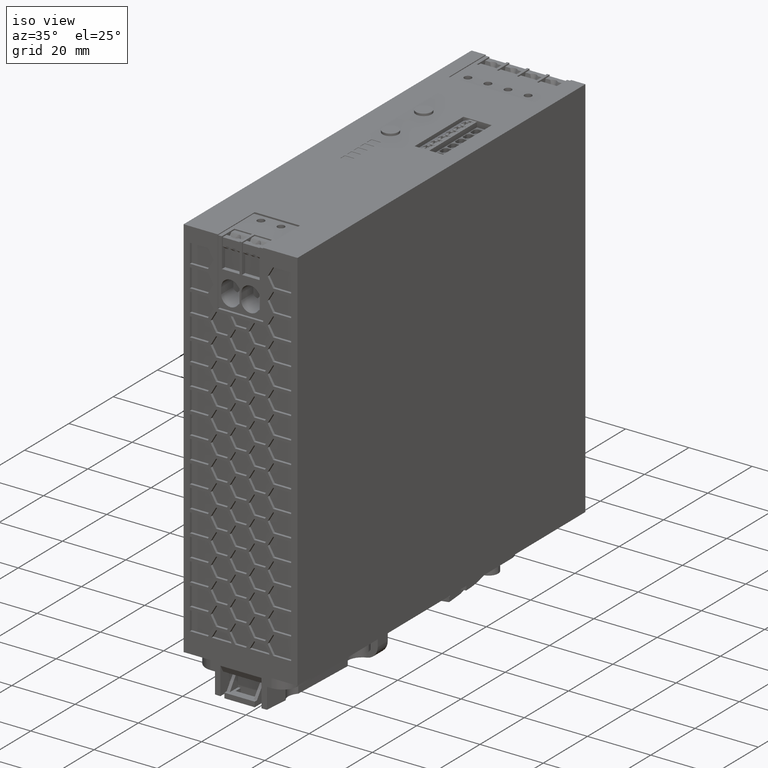
[diagram: clean part render]
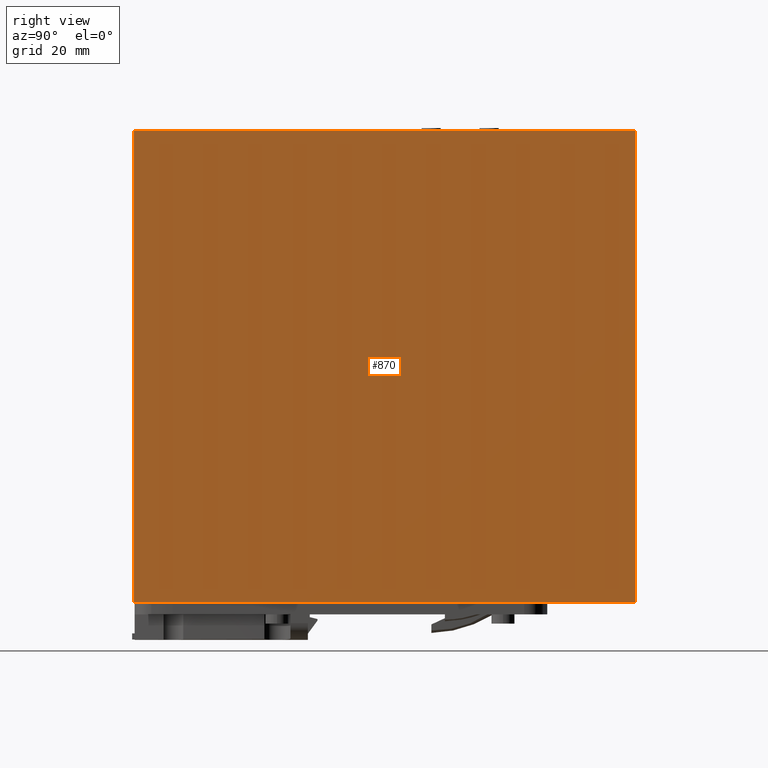
[diagram: tour spotlight — one face highlighted and labeled with its STEP entity id]
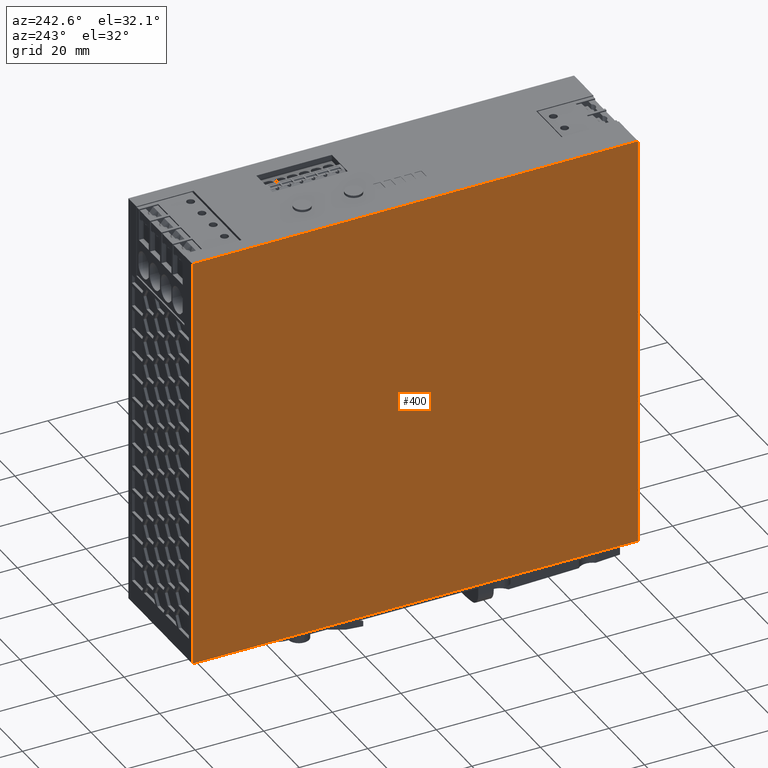
[diagram: tour spotlight — one face highlighted and labeled with its STEP entity id]
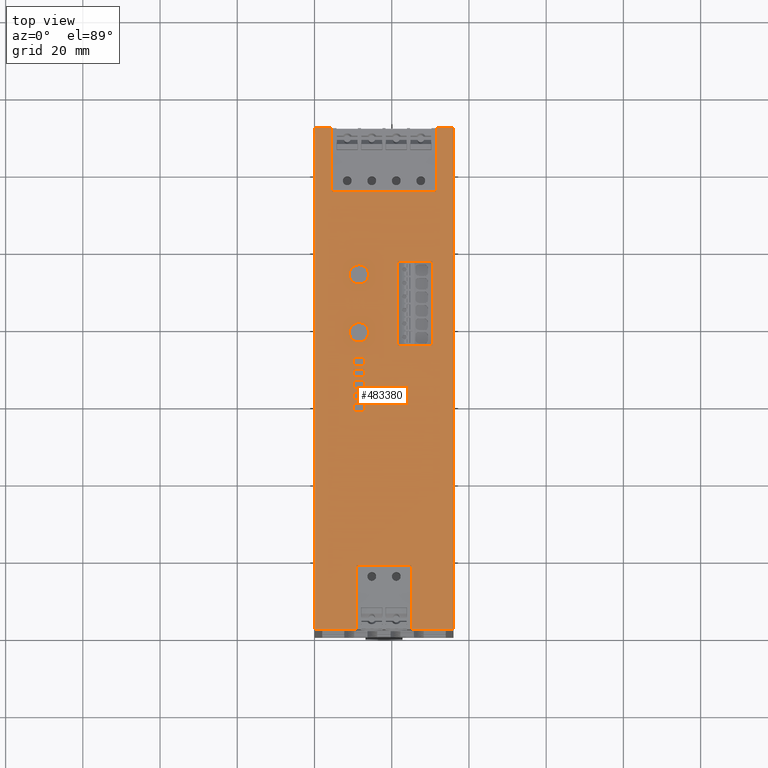
[diagram: tour spotlight — one face highlighted and labeled with its STEP entity id]
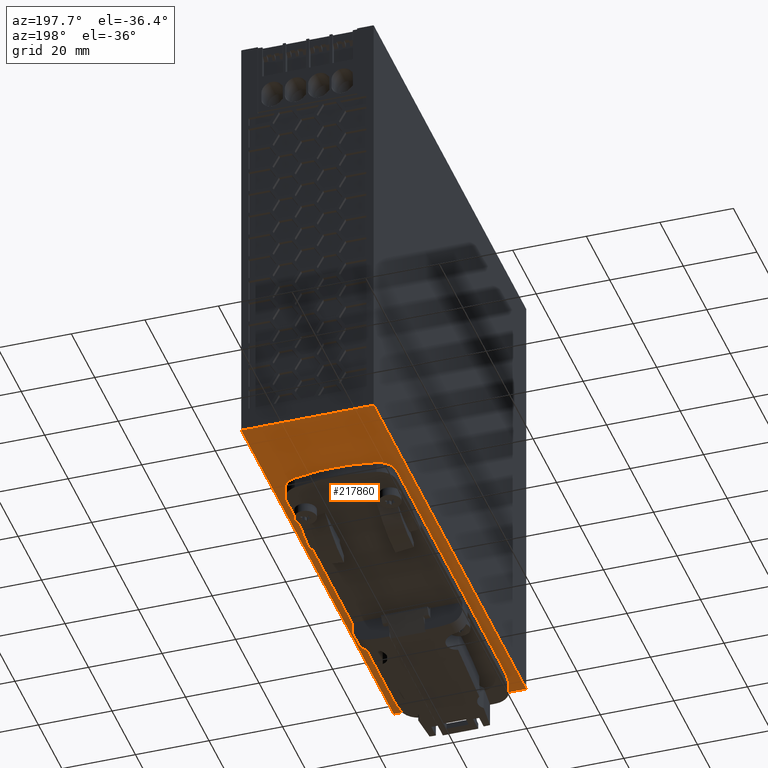
[diagram: tour spotlight — one face highlighted and labeled with its STEP entity id]
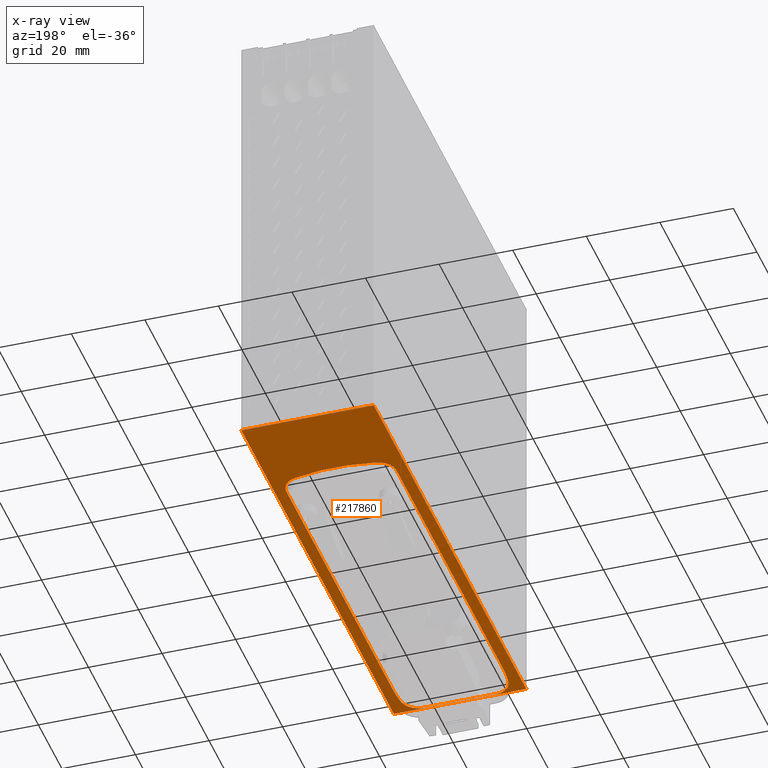
[diagram: x-ray of the same camera — body ghosted, this tour face saturated]
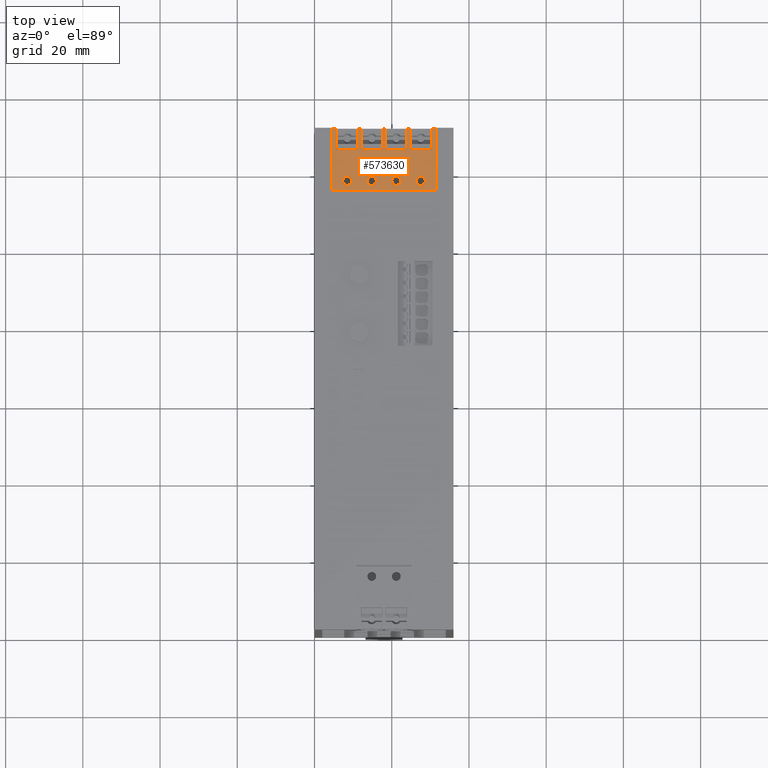
[diagram: tour spotlight — one face highlighted and labeled with its STEP entity id]
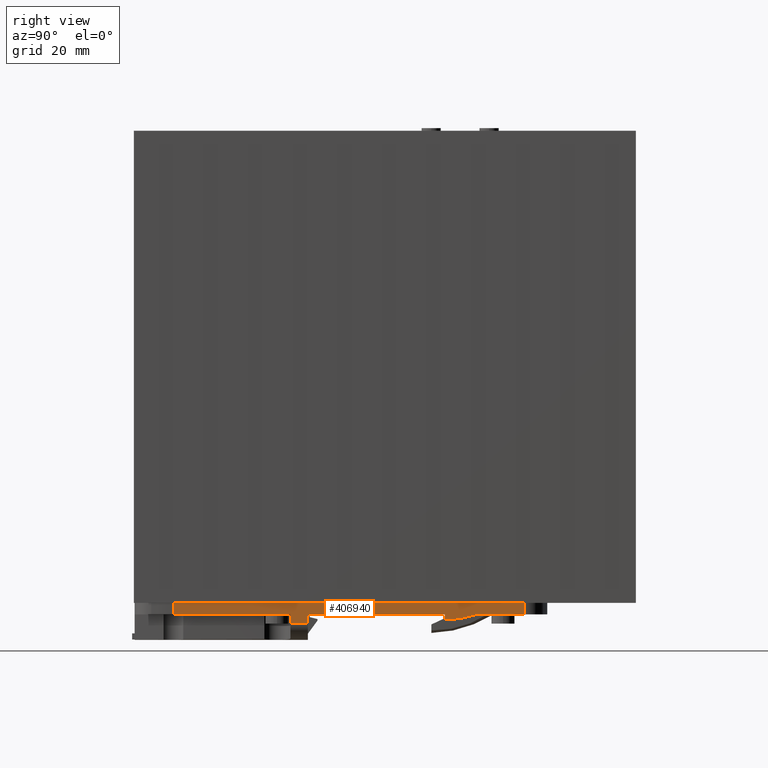
[diagram: tour spotlight — one face highlighted and labeled with its STEP entity id]
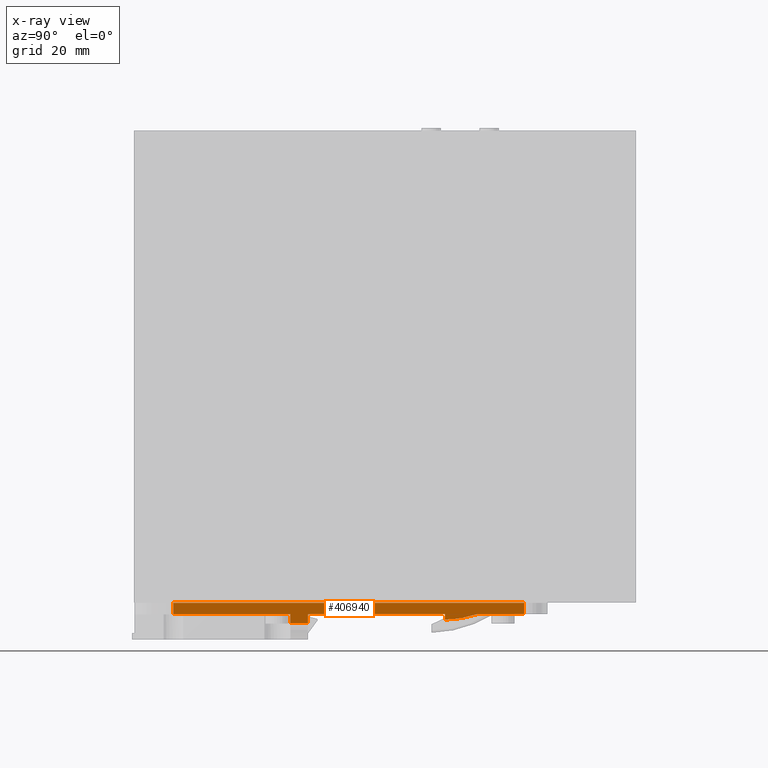
[diagram: x-ray of the same camera — body ghosted, this tour face saturated]
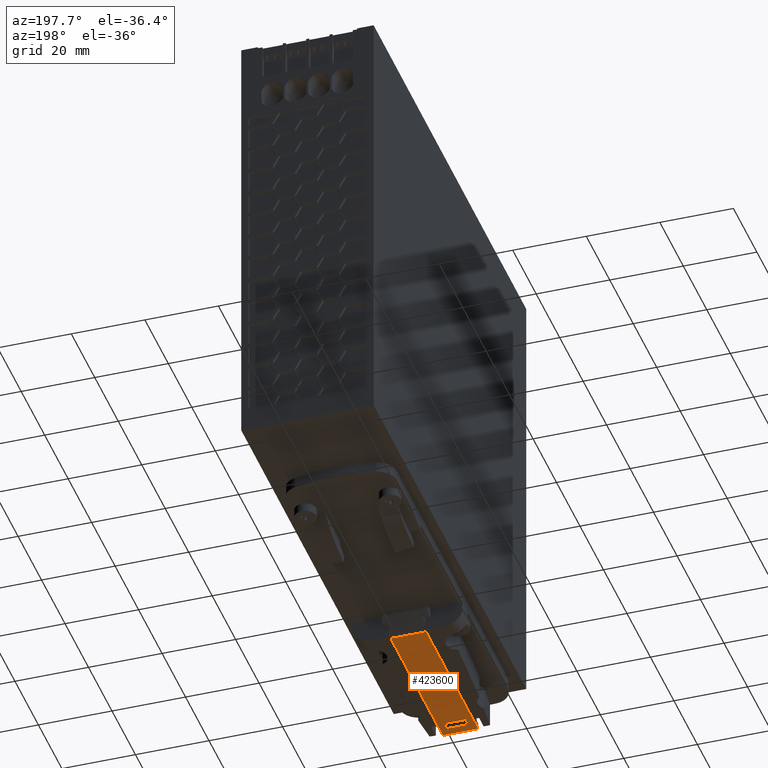
[diagram: tour spotlight — one face highlighted and labeled with its STEP entity id]
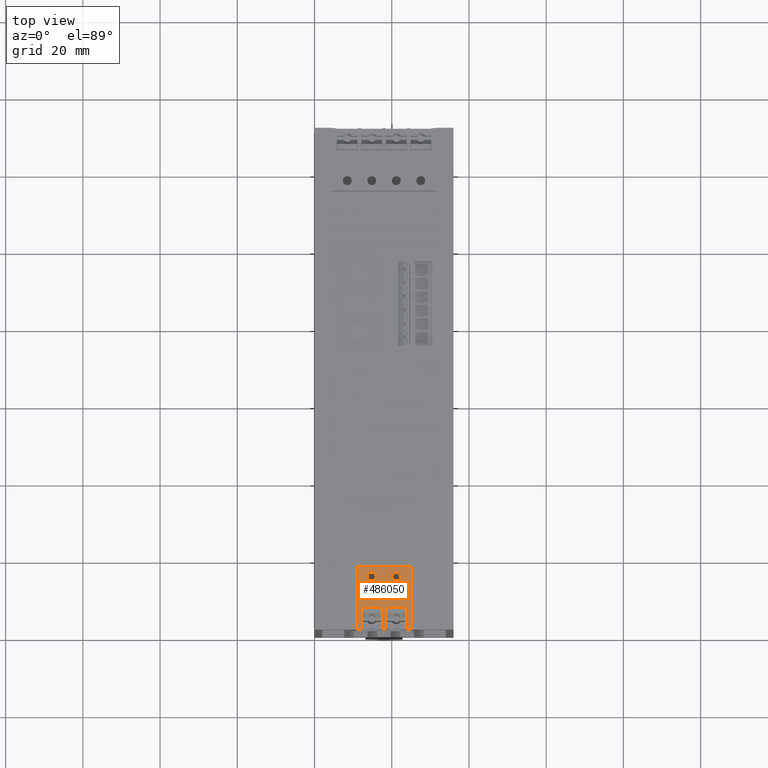
[diagram: tour spotlight — one face highlighted and labeled with its STEP entity id]
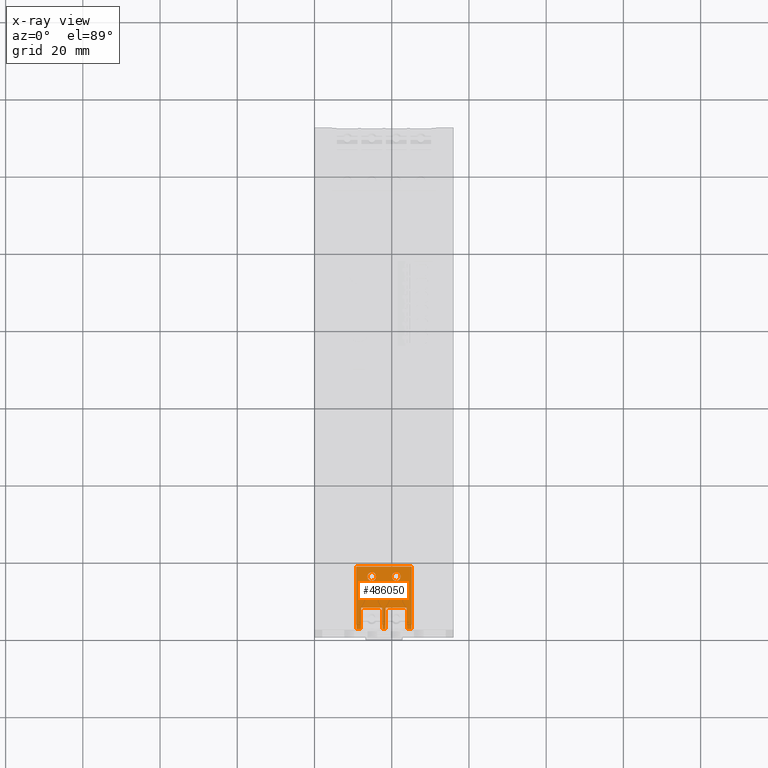
[diagram: x-ray of the same camera — body ghosted, this tour face saturated]
A machine part: a face-by-face anatomy tour. The part has 1661 B-rep faces; the first image is the clean iso view, then the 8 largest visible faces are spotlighted one at a time (largest first), each with its STEP entity span.

Face 1 — right view, entity #870. In plain terms, the highlighted planar face has unit normal (1, -0, -0).
Definition (entity closure, byte-faithful):
#480=CARTESIAN_POINT('',(36.,129.2,12.0999999999997));
#490=DIRECTION('',(1.,0.,-0.));
#500=DIRECTION('',(0.,0.,1.));
#510=AXIS2_PLACEMENT_3D('',#480,#490,#500);
#520=PLANE('',#510);
#530=CARTESIAN_POINT('',(36.,130.,131.2));
#540=DIRECTION('',(0.,0.,-1.));
#550=VECTOR('',#540,1.);
#560=LINE('',#530,#550);
#570=CARTESIAN_POINT('',(36.,130.,131.85));
#580=VERTEX_POINT('',#570);
#590=CARTESIAN_POINT('',(36.,130.,9.59999999999972));
#600=VERTEX_POINT('',#590);
#610=EDGE_CURVE('',#580,#600,#560,.T.);
#620=ORIENTED_EDGE('',*,*,#610,.F.);
#630=CARTESIAN_POINT('',(36.,65.,9.59999999999972));
#640=DIRECTION('',(0.,1.,0.));
#650=VECTOR('',#640,1.);
#660=LINE('',#630,#650);
#670=CARTESIAN_POINT('',(36.,0.,9.59999999999972));
#680=VERTEX_POINT('',#670);
#690=EDGE_CURVE('',#680,#600,#660,.T.);
#700=ORIENTED_EDGE('',*,*,#690,.T.);
#710=CARTESIAN_POINT('',(36.,0.,131.2));
#720=DIRECTION('',(0.,0.,1.));
#730=VECTOR('',#720,1.);
#740=LINE('',#710,#730);
#750=CARTESIAN_POINT('',(36.,0.,131.85));
#760=VERTEX_POINT('',#750);
#770=EDGE_CURVE('',#680,#760,#740,.T.);
#780=ORIENTED_EDGE('',*,*,#770,.F.);
#790=CARTESIAN_POINT('',(36.,65.,131.85));
#800=DIRECTION('',(0.,-1.,0.));
#810=VECTOR('',#800,1.);
#820=LINE('',#790,#810);
#830=EDGE_CURVE('',#580,#760,#820,.T.);
#840=ORIENTED_EDGE('',*,*,#830,.T.);
#850=EDGE_LOOP('',(#840,#780,#700,#620));
#860=FACE_OUTER_BOUND('',#850,.T.);
#870=ADVANCED_FACE('',(#860),#520,.T.);

Face 2 — auxiliary view, entity #400. In plain terms, the highlighted planar face has unit normal (-1, 0, 0).
Definition (entity closure, byte-faithful):
#10=CARTESIAN_POINT('',(0.,65.,131.2));
#20=DIRECTION('',(-1.,0.,0.));
#30=DIRECTION('',(0.,-1.,0.));
#40=AXIS2_PLACEMENT_3D('',#10,#20,#30);
#50=PLANE('',#40);
#60=CARTESIAN_POINT('',(0.,65.,131.85));
#70=DIRECTION('',(0.,1.,0.));
#80=VECTOR('',#70,1.);
#90=LINE('',#60,#80);
#100=CARTESIAN_POINT('',(0.,0.,131.85));
#110=VERTEX_POINT('',#100);
#120=CARTESIAN_POINT('',(0.,130.,131.85));
#130=VERTEX_POINT('',#120);
#140=EDGE_CURVE('',#110,#130,#90,.T.);
#150=ORIENTED_EDGE('',*,*,#140,.T.);
#160=CARTESIAN_POINT('',(0.,0.,131.2));
#170=DIRECTION('',(0.,0.,-1.));
#180=VECTOR('',#170,1.);
#190=LINE('',#160,#180);
#200=CARTESIAN_POINT('',(0.,0.,9.59999999999972));
#210=VERTEX_POINT('',#200);
#220=EDGE_CURVE('',#110,#210,#190,.T.);
#230=ORIENTED_EDGE('',*,*,#220,.F.);
#240=CARTESIAN_POINT('',(0.,0.799999999999955,9.59999999999972));
#250=DIRECTION('',(0.,1.,0.));
#260=VECTOR('',#250,1.);
#270=LINE('',#240,#260);
#280=CARTESIAN_POINT('',(0.,130.,9.59999999999972));
#290=VERTEX_POINT('',#280);
#300=EDGE_CURVE('',#210,#290,#270,.T.);
#310=ORIENTED_EDGE('',*,*,#300,.F.);
#320=CARTESIAN_POINT('',(0.,130.,131.2));
#330=DIRECTION('',(0.,0.,1.));
#340=VECTOR('',#330,1.);
#350=LINE('',#320,#340);
#360=EDGE_CURVE('',#290,#130,#350,.T.);
#370=ORIENTED_EDGE('',*,*,#360,.F.);
#380=EDGE_LOOP('',(#370,#310,#230,#150));
#390=FACE_OUTER_BOUND('',#380,.T.);
#400=ADVANCED_FACE('',(#390),#50,.T.);

Face 3 — top view, entity #483380. In plain terms, the highlighted planar face has unit normal (-0, -0, 1).
Definition (entity closure, byte-faithful):
#60=CARTESIAN_POINT('',(0.,65.,131.85));
#70=DIRECTION('',(0.,1.,0.));
#80=VECTOR('',#70,1.);
#90=LINE('',#60,#80);
#100=CARTESIAN_POINT('',(0.,0.,131.85));
#110=VERTEX_POINT('',#100);
#120=CARTESIAN_POINT('',(0.,130.,131.85));
#130=VERTEX_POINT('',#120);
#140=EDGE_CURVE('',#110,#130,#90,.T.);
#570=CARTESIAN_POINT('',(36.,130.,131.85));
#580=VERTEX_POINT('',#570);
#750=CARTESIAN_POINT('',(36.,0.,131.85));
#760=VERTEX_POINT('',#750);
#790=CARTESIAN_POINT('',(36.,65.,131.85));
#800=DIRECTION('',(0.,-1.,0.));
#810=VECTOR('',#800,1.);
#820=LINE('',#790,#810);
#830=EDGE_CURVE('',#580,#760,#820,.T.);
#135260=CARTESIAN_POINT('',(25.1499999986138,16.6499999754333,131.85));
#135270=VERTEX_POINT('',#135260);
#135300=CARTESIAN_POINT('',(25.1499999986135,65.,131.85));
#135310=DIRECTION('',(6.15732305094853E-15,-1.,0.));
#135320=VECTOR('',#135310,1.);
#135330=LINE('',#135300,#135320);
#135340=CARTESIAN_POINT('',(25.1499999986139,0.,131.85));
#135350=VERTEX_POINT('',#135340);
#135360=EDGE_CURVE('',#135270,#135350,#135330,.T.);
#136260=CARTESIAN_POINT('',(9.9999999986135,68.4999999754332,131.85));
#136270=VERTEX_POINT('',#136260);
#136350=CARTESIAN_POINT('',(12.9999999986135,68.4999999754332,131.85));
#136360=VERTEX_POINT('',#136350);
#136390=CARTESIAN_POINT('',(0.,68.4999999754332,131.85));
#136400=DIRECTION('',(-1.,-6.15732305094853E-15,0.));
#136410=VECTOR('',#136400,1.);
#136420=LINE('',#136390,#136410);
#136430=EDGE_CURVE('',#136360,#136270,#136420,.T.);
#136660=CARTESIAN_POINT('',(12.9999999986135,70.4999999754332,131.85));
#136670=VERTEX_POINT('',#136660);
#136700=CARTESIAN_POINT('',(12.9999999986135,65.,131.85));
#136710=DIRECTION('',(6.15732305094853E-15,-1.,0.));
#136720=VECTOR('',#136710,1.);
#136730=LINE('',#136700,#136720);
#136740=EDGE_CURVE('',#136670,#136360,#136730,.T.);
#136970=CARTESIAN_POINT('',(9.99999999861348,70.4999999754332,131.85));
#136980=VERTEX_POINT('',#136970);
#137010=CARTESIAN_POINT('',(0.,70.4999999754332,131.85));
#137020=DIRECTION('',(1.,6.15732305094853E-15,0.));
#137030=VECTOR('',#137020,1.);
#137040=LINE('',#137010,#137030);
#137050=EDGE_CURVE('',#136980,#136670,#137040,.T.);
#137250=CARTESIAN_POINT('',(9.99999999861352,65.,131.85));
#137260=DIRECTION('',(-6.15732305094853E-15,1.,0.));
#137270=VECTOR('',#137260,1.);
#137280=LINE('',#137250,#137270);
#137290=EDGE_CURVE('',#136270,#136980,#137280,.T.);
#137970=CARTESIAN_POINT('',(9.99999999861357,56.4999999754332,131.85));
#137980=VERTEX_POINT('',#137970);
#138060=CARTESIAN_POINT('',(12.9999999986136,56.4999999754332,131.85));
#138070=VERTEX_POINT('',#138060);
#138100=CARTESIAN_POINT('',(0.,56.4999999754332,131.85));
#138110=DIRECTION('',(-1.,-6.15732305094853E-15,0.));
#138120=VECTOR('',#138110,1.);
#138130=LINE('',#138100,#138120);
#138140=EDGE_CURVE('',#138070,#137980,#138130,.T.);
#138370=CARTESIAN_POINT('',(12.9999999986136,58.4999999754332,131.85));
#138380=VERTEX_POINT('',#138370);
#138410=CARTESIAN_POINT('',(12.9999999986135,65.,131.85));
#138420=DIRECTION('',(6.15732305094853E-15,-1.,0.));
#138430=VECTOR('',#138420,1.);
#138440=LINE('',#138410,#138430);
#138450=EDGE_CURVE('',#138380,#138070,#138440,.T.);
#138680=CARTESIAN_POINT('',(9.99999999861356,58.4999999754332,131.85));
#138690=VERTEX_POINT('',#138680);
#138720=CARTESIAN_POINT('',(0.,58.4999999754332,131.85));
#138730=DIRECTION('',(1.,6.15732305094853E-15,0.));
#138740=VECTOR('',#138730,1.);
#138750=LINE('',#138720,#138740);
#138760=EDGE_CURVE('',#138690,#138380,#138750,.T.);
#138960=CARTESIAN_POINT('',(9.99999999861352,65.,131.85));
#138970=DIRECTION('',(-6.15732305094853E-15,1.,0.));
#138980=VECTOR('',#138970,1.);
#138990=LINE('',#138960,#138980);
#139000=EDGE_CURVE('',#137980,#138690,#138990,.T.);
#139680=CARTESIAN_POINT('',(12.9999999986135,65.4999999754332,131.85));
#139690=VERTEX_POINT('',#139680);
#139770=CARTESIAN_POINT('',(12.9999999986135,67.4999999754332,131.85));
#139780=VERTEX_POINT('',#139770);
#139810=CARTESIAN_POINT('',(12.9999999986135,65.,131.85));
#139820=DIRECTION('',(6.15732305094853E-15,-1.,0.));
#139830=VECTOR('',#139820,1.);
#139840=LINE('',#139810,#139830);
#139850=EDGE_CURVE('',#139780,#139690,#139840,.T.);
#140060=CARTESIAN_POINT('',(9.99999999861351,65.4999999754332,131.85));
#140070=VERTEX_POINT('',#140060);
#140120=CARTESIAN_POINT('',(0.,65.4999999754332,131.85));
#140130=DIRECTION('',(-1.,-6.15732305094853E-15,0.));
#140140=VECTOR('',#140130,1.);
#140150=LINE('',#140120,#140140);
#140160=EDGE_CURVE('',#139690,#140070,#140150,.T.);
#140370=CARTESIAN_POINT('',(9.9999999986135,67.4999999754332,131.85));
#140380=VERTEX_POINT('',#140370);
#140430=CARTESIAN_POINT('',(9.99999999861352,65.,131.85));
#140440=DIRECTION('',(-6.15732305094853E-15,1.,0.));
#140450=VECTOR('',#140440,1.);
#140460=LINE('',#140430,#140450);
#140470=EDGE_CURVE('',#140070,#140380,#140460,.T.);
#140670=CARTESIAN_POINT('',(0.,67.4999999754332,131.85));
#140680=DIRECTION('',(1.,6.15732305094853E-15,0.));
#140690=VECTOR('',#140680,1.);
#140700=LINE('',#140670,#140690);
#140710=EDGE_CURVE('',#140380,#139780,#140700,.T.);
#141390=CARTESIAN_POINT('',(12.9999999986135,62.4999999754332,131.85));
#141400=VERTEX_POINT('',#141390);
#141480=CARTESIAN_POINT('',(12.9999999986135,64.4999999754332,131.85));
#141490=VERTEX_POINT('',#141480);
#141520=CARTESIAN_POINT('',(12.9999999986135,65.,131.85));
#141530=DIRECTION('',(6.15732305094853E-15,-1.,0.));
#141540=VECTOR('',#141530,1.);
#141550=LINE('',#141520,#141540);
#141560=EDGE_CURVE('',#141490,#141400,#141550,.T.);
#141770=CARTESIAN_POINT('',(9.99999999861353,62.4999999754332,131.85));
#141780=VERTEX_POINT('',#141770);
#141830=CARTESIAN_POINT('',(0.,62.4999999754332,131.85));
#141840=DIRECTION('',(-1.,-6.15732305094853E-15,0.));
#141850=VECTOR('',#141840,1.);
#141860=LINE('',#141830,#141850);
#141870=EDGE_CURVE('',#141400,#141780,#141860,.T.);
#142080=CARTESIAN_POINT('',(9.99999999861352,64.4999999754332,131.85));
#142090=VERTEX_POINT('',#142080);
#142140=CARTESIAN_POINT('',(9.99999999861352,65.,131.85));
#142150=DIRECTION('',(-6.15732305094853E-15,1.,0.));
#142160=VECTOR('',#142150,1.);
#142170=LINE('',#142140,#142160);
#142180=EDGE_CURVE('',#141780,#142090,#142170,.T.);
#142380=CARTESIAN_POINT('',(0.,64.4999999754332,131.85));
#142390=DIRECTION('',(1.,6.15732305094853E-15,0.));
#142400=VECTOR('',#142390,1.);
#142410=LINE('',#142380,#142400);
#142420=EDGE_CURVE('',#142090,#141490,#142410,.T.);
#143100=CARTESIAN_POINT('',(9.99999999861355,59.4999999754332,131.85));
#143110=VERTEX_POINT('',#143100);
#143190=CARTESIAN_POINT('',(12.9999999986136,59.4999999754332,131.85));
#143200=VERTEX_POINT('',#143190);
#143230=CARTESIAN_POINT('',(0.,59.4999999754332,131.85));
#143240=DIRECTION('',(-1.,-6.15732305094853E-15,0.));
#143250=VECTOR('',#143240,1.);
#143260=LINE('',#143230,#143250);
#143270=EDGE_CURVE('',#143200,#143110,#143260,.T.);
#143500=CARTESIAN_POINT('',(12.9999999986135,61.4999999754332,131.85));
#143510=VERTEX_POINT('',#143500);
#143540=CARTESIAN_POINT('',(12.9999999986135,65.,131.85));
#143550=DIRECTION('',(6.15732305094853E-15,-1.,0.));
#143560=VECTOR('',#143550,1.);
#143570=LINE('',#143540,#143560);
#143580=EDGE_CURVE('',#143510,#143200,#143570,.T.);
#143810=CARTESIAN_POINT('',(9.99999999861354,61.4999999754332,131.85));
#143820=VERTEX_POINT('',#143810);
#143850=CARTESIAN_POINT('',(0.,61.4999999754332,131.85));
#143860=DIRECTION('',(1.,6.15732305094853E-15,0.));
#143870=VECTOR('',#143860,1.);
#143880=LINE('',#143850,#143870);
#143890=EDGE_CURVE('',#143820,#143510,#143880,.T.);
#144090=CARTESIAN_POINT('',(9.99999999861352,65.,131.85));
#144100=DIRECTION('',(-6.15732305094853E-15,1.,0.));
#144110=VECTOR('',#144100,1.);
#144120=LINE('',#144090,#144110);
#144130=EDGE_CURVE('',#143110,#143820,#144120,.T.);
#144620=CARTESIAN_POINT('',(14.0000000010171,76.9999999754332,131.85));
#144630=VERTEX_POINT('',#144620);
#144660=CARTESIAN_POINT('',(11.5000000010171,76.9999999754332,131.85));
#144670=DIRECTION('',(0.,0.,1.));
#144680=DIRECTION('',(1.,6.15732305094853E-15,0.));
#144690=AXIS2_PLACEMENT_3D('',#144660,#144670,#144680);
#144700=CIRCLE('',#144690,2.5);
#144710=CARTESIAN_POINT('',(9.00000000101714,76.9999999754332,131.85));
#144720=VERTEX_POINT('',#144710);
#144730=EDGE_CURVE('',#144720,#144630,#144700,.T.);
#145240=CARTESIAN_POINT('',(14.0000000010171,91.9999999754332,131.85));
#145250=VERTEX_POINT('',#145240);
#145280=CARTESIAN_POINT('',(11.5000000010171,91.9999999754332,131.85));
#145290=DIRECTION('',(0.,0.,1.));
#145300=DIRECTION('',(1.,6.15732305094853E-15,0.));
#145310=AXIS2_PLACEMENT_3D('',#145280,#145290,#145300);
#145320=CIRCLE('',#145310,2.5);
#145330=CARTESIAN_POINT('',(9.00000000101705,91.9999999754332,131.85));
#145340=VERTEX_POINT('',#145330);
#145350=EDGE_CURVE('',#145340,#145250,#145320,.T.);
#151300=CARTESIAN_POINT('',(21.560000001017,95.4999999754333,
131.850000000001));
#151310=VERTEX_POINT('',#151300);
#151340=CARTESIAN_POINT('',(1.01702772128907E-9,95.4999999754332,
131.850000000001));
#151350=DIRECTION('',(1.,6.15727392303759E-15,-9.09881891181536E-45));
#151360=VECTOR('',#151350,1.);
#151370=LINE('',#151340,#151360);
#151380=CARTESIAN_POINT('',(30.560000001017,95.4999999754334,
131.850000000001));
#151390=VERTEX_POINT('',#151380);
#151400=EDGE_CURVE('',#151310,#151390,#151370,.T.);
#152370=CARTESIAN_POINT('',(30.5600000010172,73.4999999754334,
131.850000000001));
#152380=VERTEX_POINT('',#152370);
#152410=CARTESIAN_POINT('',(1.01716318131538E-9,73.4999999754332,
131.850000000001));
#152420=DIRECTION('',(-1.,-6.15727392303759E-15,9.09881891181536E-45));
#152430=VECTOR('',#152420,1.);
#152440=LINE('',#152410,#152430);
#152450=CARTESIAN_POINT('',(21.5600000010172,73.4999999754333,
131.850000000001));
#152460=VERTEX_POINT('',#152450);
#152470=EDGE_CURVE('',#152380,#152460,#152440,.T.);
#174470=CARTESIAN_POINT('',(30.5600000010168,129.199999975433,
131.850000000001));
#174480=DIRECTION('',(6.15727392303759E-15,-1.,-1.32377063674843E-39));
#174490=VECTOR('',#174480,1.);
#174500=LINE('',#174470,#174490);
#174510=EDGE_CURVE('',#151390,#152380,#174500,.T.);
#174700=CARTESIAN_POINT('',(21.5600000010168,129.199999975433,
131.850000000001));
#174710=DIRECTION('',(-6.15727392303759E-15,1.,1.32377063674843E-39));
#174720=VECTOR('',#174710,1.);
#174730=LINE('',#174700,#174720);
#174740=EDGE_CURVE('',#152460,#151310,#174730,.T.);
#215940=EDGE_CURVE('',#145250,#145340,#145320,.T.);
#216140=EDGE_CURVE('',#144630,#144720,#144700,.T.);
#252360=CARTESIAN_POINT('',(0.,0.,131.85));
#252370=DIRECTION('',(-1.,0.,0.));
#252380=VECTOR('',#252370,1.);
#252390=LINE('',#252360,#252380);
#252400=CARTESIAN_POINT('',(10.8499999986139,0.,131.85));
#252410=VERTEX_POINT('',#252400);
#252420=EDGE_CURVE('',#252410,#110,#252390,.T.);
#252520=CARTESIAN_POINT('',(0.,0.,131.85));
#252530=DIRECTION('',(-1.,0.,0.));
#252540=VECTOR('',#252530,1.);
#252550=LINE('',#252520,#252540);
#252560=EDGE_CURVE('',#760,#135350,#252550,.T.);
#399030=CARTESIAN_POINT('',(4.5,130.,131.85));
#399040=VERTEX_POINT('',#399030);
#399070=CARTESIAN_POINT('',(0.,130.,131.85));
#399080=DIRECTION('',(1.,0.,0.));
#399090=VECTOR('',#399080,1.);
#399100=LINE('',#399070,#399090);
#399110=EDGE_CURVE('',#130,#399040,#399100,.T.);
#399160=CARTESIAN_POINT('',(0.,130.,131.85));
#399170=DIRECTION('',(1.,0.,0.));
#399180=VECTOR('',#399170,1.);
#399190=LINE('',#399160,#399180);
#399200=CARTESIAN_POINT('',(31.5,130.,131.85));
#399210=VERTEX_POINT('',#399200);
#399220=EDGE_CURVE('',#399210,#580,#399190,.T.);
#399520=CARTESIAN_POINT('',(4.5,113.35,131.85));
#399530=VERTEX_POINT('',#399520);
#399680=CARTESIAN_POINT('',(31.5,113.35,131.85));
#399690=VERTEX_POINT('',#399680);
#399720=CARTESIAN_POINT('',(0.,113.35,131.85));
#399730=DIRECTION('',(1.,0.,0.));
#399740=VECTOR('',#399730,1.);
#399750=LINE('',#399720,#399740);
#399760=EDGE_CURVE('',#399530,#399690,#399750,.T.);
#400350=CARTESIAN_POINT('',(31.5,65.,131.85));
#400360=DIRECTION('',(0.,-1.,0.));
#400370=VECTOR('',#400360,1.);
#400380=LINE('',#400350,#400370);
#400390=EDGE_CURVE('',#399210,#399690,#400380,.T.);
#401040=CARTESIAN_POINT('',(4.5,65.,131.85));
#401050=DIRECTION('',(0.,1.,0.));
#401060=VECTOR('',#401050,1.);
#401070=LINE('',#401040,#401060);
#401080=EDGE_CURVE('',#399530,#399040,#401070,.T.);
#482630=CARTESIAN_POINT('',(18.,65.,131.85));
#482640=DIRECTION('',(0.,0.,1.));
#482650=DIRECTION('',(1.,0.,0.));
#482660=AXIS2_PLACEMENT_3D('',#482630,#482640,#482650);
#482670=PLANE('',#482660);
#482680=ORIENTED_EDGE('',*,*,#140470,.T.);
#482690=ORIENTED_EDGE('',*,*,#140160,.T.);
#482700=ORIENTED_EDGE('',*,*,#139850,.T.);
#482710=ORIENTED_EDGE('',*,*,#140710,.T.);
#482720=EDGE_LOOP('',(#482710,#482700,#482690,#482680));
#482730=FACE_BOUND('',#482720,.T.);
#482740=ORIENTED_EDGE('',*,*,#142180,.T.);
#482750=ORIENTED_EDGE('',*,*,#141870,.T.);
#482760=ORIENTED_EDGE('',*,*,#141560,.T.);
#482770=ORIENTED_EDGE('',*,*,#142420,.T.);
#482780=EDGE_LOOP('',(#482770,#482760,#482750,#482740));
#482790=FACE_BOUND('',#482780,.T.);
#482800=ORIENTED_EDGE('',*,*,#143580,.T.);
#482810=ORIENTED_EDGE('',*,*,#143890,.T.);
#482820=ORIENTED_EDGE('',*,*,#144130,.T.);
#482830=ORIENTED_EDGE('',*,*,#143270,.T.);
#482840=EDGE_LOOP('',(#482830,#482820,#482810,#482800));
#482850=FACE_BOUND('',#482840,.T.);
#482860=ORIENTED_EDGE('',*,*,#216140,.F.);
#482870=ORIENTED_EDGE('',*,*,#144730,.F.);
#482880=EDGE_LOOP('',(#482870,#482860));
#482890=FACE_BOUND('',#482880,.T.);
#482900=ORIENTED_EDGE('',*,*,#215940,.F.);
#482910=ORIENTED_EDGE('',*,*,#145350,.F.);
#482920=EDGE_LOOP('',(#482910,#482900));
#482930=FACE_BOUND('',#482920,.T.);
#482940=ORIENTED_EDGE('',*,*,#136740,.T.);
#482950=ORIENTED_EDGE('',*,*,#137050,.T.);
#482960=ORIENTED_EDGE('',*,*,#137290,.T.);
#482970=ORIENTED_EDGE('',*,*,#136430,.T.);
#482980=EDGE_LOOP('',(#482970,#482960,#482950,#482940));
#482990=FACE_BOUND('',#482980,.T.);
#483000=ORIENTED_EDGE('',*,*,#138450,.T.);
#483010=ORIENTED_EDGE('',*,*,#138760,.T.);
#483020=ORIENTED_EDGE('',*,*,#139000,.T.);
#483030=ORIENTED_EDGE('',*,*,#138140,.T.);
#483040=EDGE_LOOP('',(#483030,#483020,#483010,#483000));
#483050=FACE_BOUND('',#483040,.T.);
#483060=ORIENTED_EDGE('',*,*,#174510,.T.);
#483070=ORIENTED_EDGE('',*,*,#151400,.T.);
#483080=ORIENTED_EDGE('',*,*,#174740,.T.);
#483090=ORIENTED_EDGE('',*,*,#152470,.T.);
#483100=EDGE_LOOP('',(#483090,#483080,#483070,#483060));
#483110=FACE_BOUND('',#483100,.T.);
#483120=CARTESIAN_POINT('',(0.,16.6499999754331,131.85));
#483130=DIRECTION('',(-1.,-6.15732305094853E-15,0.));
#483140=VECTOR('',#483130,1.);
#483150=LINE('',#483120,#483140);
#483160=CARTESIAN_POINT('',(10.8499999986138,16.6499999754332,131.85));
#483170=VERTEX_POINT('',#483160);
#483180=EDGE_CURVE('',#135270,#483170,#483150,.T.);
#483190=ORIENTED_EDGE('',*,*,#483180,.F.);
#483200=CARTESIAN_POINT('',(10.8499999986135,65.,131.85));
#483210=DIRECTION('',(6.15732305094853E-15,-1.,0.));
#483220=VECTOR('',#483210,1.);
#483230=LINE('',#483200,#483220);
#483240=EDGE_CURVE('',#483170,#252410,#483230,.T.);
#483250=ORIENTED_EDGE('',*,*,#483240,.F.);
#483260=ORIENTED_EDGE('',*,*,#252420,.F.);
#483270=ORIENTED_EDGE('',*,*,#140,.F.);
#483280=ORIENTED_EDGE('',*,*,#399110,.F.);
#483290=ORIENTED_EDGE('',*,*,#401080,.T.);
#483300=ORIENTED_EDGE('',*,*,#399760,.F.);
#483310=ORIENTED_EDGE('',*,*,#400390,.T.);
#483320=ORIENTED_EDGE('',*,*,#399220,.F.);
#483330=ORIENTED_EDGE('',*,*,#830,.F.);
#483340=ORIENTED_EDGE('',*,*,#252560,.F.);
#483350=ORIENTED_EDGE('',*,*,#135360,.T.);
#483360=EDGE_LOOP('',(#483350,#483340,#483330,#483320,#483310,#483300,
#483290,#483280,#483270,#483260,#483250,#483190));
#483370=FACE_OUTER_BOUND('',#483360,.T.);
#483380=ADVANCED_FACE('',(#482730,#482790,#482850,#482890,#482930,
#482990,#483050,#483110,#483370),#482670,.T.);

Face 4 — auxiliary view, entity #217860. An x-ray twin of the same camera follows (body ghosted, this face saturated) — the face is partly hidden behind the body. In plain terms, the highlighted planar face has unit normal (-0, -0, 1).
Definition (entity closure, byte-faithful):
#200=CARTESIAN_POINT('',(0.,0.,9.59999999999972));
#210=VERTEX_POINT('',#200);
#240=CARTESIAN_POINT('',(0.,0.799999999999955,9.59999999999972));
#250=DIRECTION('',(0.,1.,0.));
#260=VECTOR('',#250,1.);
#270=LINE('',#240,#260);
#280=CARTESIAN_POINT('',(0.,130.,9.59999999999972));
#290=VERTEX_POINT('',#280);
#300=EDGE_CURVE('',#210,#290,#270,.T.);
#590=CARTESIAN_POINT('',(36.,130.,9.59999999999972));
#600=VERTEX_POINT('',#590);
#630=CARTESIAN_POINT('',(36.,65.,9.59999999999972));
#640=DIRECTION('',(0.,1.,0.));
#650=VECTOR('',#640,1.);
#660=LINE('',#630,#650);
#670=CARTESIAN_POINT('',(36.,0.,9.59999999999972));
#680=VERTEX_POINT('',#670);
#690=EDGE_CURVE('',#680,#600,#660,.T.);
#216760=CARTESIAN_POINT('',(0.,0.,9.59999999999972));
#216770=DIRECTION('',(-0.,0.,1.));
#216780=DIRECTION('',(0.,-1.,0.));
#216790=AXIS2_PLACEMENT_3D('',#216760,#216770,#216780);
#216800=PLANE('',#216790);
#216810=CARTESIAN_POINT('',(8.36080154088798,5.1985886361894,
9.59999999999972));
#216820=DIRECTION('',(9.95682444457783E-60,-3.26265223399926E-55,-1.));
#216830=DIRECTION('',(-1.,1.38913403349705E-19,-9.95682444457787E-60));
#216840=AXIS2_PLACEMENT_3D('',#216810,#216820,#216830);
#216850=CIRCLE('',#216840,4.99999999999992);
#216860=CARTESIAN_POINT('',(8.36087027498926,0.198588636661881,
9.59999999999972));
#216870=VERTEX_POINT('',#216860);
#216880=CARTESIAN_POINT('',(3.41209476745906,4.48423489285386,
9.59999999999972));
#216890=VERTEX_POINT('',#216880);
#216900=EDGE_CURVE('',#216870,#216890,#216850,.T.);
#216910=ORIENTED_EDGE('',*,*,#216900,.F.);
#216920=CARTESIAN_POINT('',(43.0017489548897,10.1990648395388,
9.59999999999972));
#216930=DIRECTION('',(9.95682444457783E-60,-3.26265223399926E-55,-1.));
#216940=DIRECTION('',(-1.,1.38913403349705E-19,-9.95682444457787E-60));
#216950=AXIS2_PLACEMENT_3D('',#216920,#216930,#216940);
#216960=CIRCLE('',#216950,39.9999999999984);
#216970=CARTESIAN_POINT('',(3.00174895867081,10.1985149667294,
9.59999999999972));
#216980=VERTEX_POINT('',#216970);
#216990=EDGE_CURVE('',#216890,#216980,#216960,.T.);
#217000=ORIENTED_EDGE('',*,*,#216990,.F.);
#217010=CARTESIAN_POINT('',(3.0009956125073,65.,9.59999999999972));
#217020=DIRECTION('',(1.37468202359206E-5,-0.999999999905512,0.));
#217030=VECTOR('',#217020,1.);
#217040=LINE('',#217010,#217030);
#217050=CARTESIAN_POINT('',(3.00049971882964,101.073336895104,
9.59999999999972));
#217060=VERTEX_POINT('',#217050);
#217070=EDGE_CURVE('',#217060,#216980,#217040,.T.);
#217080=ORIENTED_EDGE('',*,*,#217070,.T.);
#217090=CARTESIAN_POINT('',(8.00049971835728,101.073405629205,
9.59999999999972));
#217100=DIRECTION('',(9.95682444457783E-60,-3.26265223399926E-55,-1.));
#217110=DIRECTION('',(-1.,1.38913403349705E-19,-9.95682444457787E-60));
#217120=AXIS2_PLACEMENT_3D('',#217090,#217100,#217110);
#217130=CIRCLE('',#217120,5.00000000000008);
#217140=CARTESIAN_POINT('',(6.88932159187441,105.948370569717,
9.59999999999972));
#217150=VERTEX_POINT('',#217140);
#217160=EDGE_CURVE('',#217060,#217150,#217130,.T.);
#217170=ORIENTED_EDGE('',*,*,#217160,.F.);
#217180=CARTESIAN_POINT('',(18.0011028567024,57.1987211645928,
9.59999999999972));
#217190=DIRECTION('',(9.95682444457783E-60,-3.26265223399926E-55,-1.));
#217200=DIRECTION('',(-1.,1.38913403349705E-19,-9.95682444457787E-60));
#217210=AXIS2_PLACEMENT_3D('',#217180,#217190,#217200);
#217220=CIRCLE('',#217210,49.9999999999993);
#217230=CARTESIAN_POINT('',(29.1115438119969,105.948676054611,
9.59999999999972));
#217240=VERTEX_POINT('',#217230);
#217250=EDGE_CURVE('',#217150,#217240,#217220,.T.);
#217260=ORIENTED_EDGE('',*,*,#217250,.F.);
#217270=CARTESIAN_POINT('',(28.0004997164675,101.073680565609,
9.59999999999972));
#217280=DIRECTION('',(9.95682444457783E-60,-3.26265223399926E-55,-1.));
#217290=DIRECTION('',(-1.,1.38913403349705E-19,-9.95682444457787E-60));
#217300=AXIS2_PLACEMENT_3D('',#217270,#217280,#217290);
#217310=CIRCLE('',#217300,4.99999999999995);
#217320=CARTESIAN_POINT('',(33.000499715995,101.073749299711,
9.59999999999972));
#217330=VERTEX_POINT('',#217320);
#217340=EDGE_CURVE('',#217240,#217330,#217310,.T.);
#217350=ORIENTED_EDGE('',*,*,#217340,.F.);
#217360=CARTESIAN_POINT('',(33.0009956153419,65.,9.59999999999972));
#217370=DIRECTION('',(-1.37468202358229E-5,0.999999999905513,0.));
#217380=VECTOR('',#217370,1.);
#217390=LINE('',#217360,#217380);
#217400=CARTESIAN_POINT('',(33.0017489558362,10.1989273713365,
9.59999999999972));
#217410=VERTEX_POINT('',#217400);
#217420=EDGE_CURVE('',#217410,#217330,#217390,.T.);
#217430=ORIENTED_EDGE('',*,*,#217420,.T.);
#217440=CARTESIAN_POINT('',(-6.99825104038126,10.1983774985268,
9.59999999999972));
#217450=DIRECTION('',(9.95682444457783E-60,-3.26265223399926E-55,-1.));
#217460=DIRECTION('',(-1.,1.38913403349705E-19,-9.95682444457787E-60));
#217470=AXIS2_PLACEMENT_3D('',#217440,#217450,#217460);
#217480=CIRCLE('',#217470,39.9999999999969);
#217490=CARTESIAN_POINT('',(32.5915602535649,4.48463601772052,
9.59999999999972));
#217500=VERTEX_POINT('',#217490);
#217510=EDGE_CURVE('',#217410,#217500,#217480,.T.);
#217520=ORIENTED_EDGE('',*,*,#217510,.F.);
#217530=CARTESIAN_POINT('',(27.6428338418213,5.19885370282137,
9.59999999999972));
#217540=DIRECTION('',(9.95682444457783E-60,-3.26265223399926E-55,-1.));
#217550=DIRECTION('',(-1.,1.38913403349705E-19,-9.95682444457787E-60));
#217560=AXIS2_PLACEMENT_3D('',#217530,#217540,#217550);
#217570=CIRCLE('',#217560,4.99999999999991);
#217580=CARTESIAN_POINT('',(27.6429025759224,0.198853703293892,
9.59999999999972));
#217590=VERTEX_POINT('',#217580);
#217600=EDGE_CURVE('',#217500,#217590,#217570,.T.);
#217610=ORIENTED_EDGE('',*,*,#217600,.F.);
#217620=CARTESIAN_POINT('',(0.,0.198473701281159,9.59999999999972));
#217630=DIRECTION('',(0.999999999905513,1.37468202386569E-5,0.));
#217640=VECTOR('',#217630,1.);
#217650=LINE('',#217620,#217640);
#217660=EDGE_CURVE('',#216870,#217590,#217650,.T.);
#217670=ORIENTED_EDGE('',*,*,#217660,.T.);
#217680=EDGE_LOOP('',(#217670,#217610,#217520,#217430,#217350,#217260,
#217170,#217080,#217000,#216910));
#217690=FACE_BOUND('',#217680,.T.);
#217700=ORIENTED_EDGE('',*,*,#690,.F.);
#217710=CARTESIAN_POINT('',(0.,130.,9.59999999999972));
#217720=DIRECTION('',(1.,0.,0.));
#217730=VECTOR('',#217720,1.);
#217740=LINE('',#217710,#217730);
#217750=EDGE_CURVE('',#290,#600,#217740,.T.);
#217760=ORIENTED_EDGE('',*,*,#217750,.T.);
#217770=ORIENTED_EDGE('',*,*,#300,.T.);
#217780=CARTESIAN_POINT('',(0.,0.,9.59999999999972));
#217790=DIRECTION('',(-1.,0.,0.));
#217800=VECTOR('',#217790,1.);
#217810=LINE('',#217780,#217800);
#217820=EDGE_CURVE('',#680,#210,#217810,.T.);
#217830=ORIENTED_EDGE('',*,*,#217820,.T.);
#217840=EDGE_LOOP('',(#217830,#217770,#217760,#217700));
#217850=FACE_OUTER_BOUND('',#217840,.T.);
#217860=ADVANCED_FACE('',(#217690,#217850),#216800,.F.);

Face 5 — top view, entity #573630. In plain terms, the highlighted planar face has unit normal (-0, -0, 1).
Definition (entity closure, byte-faithful):
#399970=CARTESIAN_POINT('',(31.5,113.750000002604,131.60000000419));
#399980=VERTEX_POINT('',#399970);
#400030=CARTESIAN_POINT('',(31.5,65.,131.60000000419));
#400040=DIRECTION('',(0.,-1.,0.));
#400050=VECTOR('',#400040,1.);
#400060=LINE('',#400030,#400050);
#400070=CARTESIAN_POINT('',(31.5,129.900000002161,131.60000000419));
#400080=VERTEX_POINT('',#400070);
#400090=EDGE_CURVE('',#400080,#399980,#400060,.T.);
#400770=CARTESIAN_POINT('',(4.5,129.900000002161,131.60000000419));
#400780=VERTEX_POINT('',#400770);
#400810=CARTESIAN_POINT('',(4.5,65.,131.60000000419));
#400820=DIRECTION('',(0.,1.,0.));
#400830=VECTOR('',#400820,1.);
#400840=LINE('',#400810,#400830);
#400850=CARTESIAN_POINT('',(4.5,113.750000002604,131.60000000419));
#400860=VERTEX_POINT('',#400850);
#400870=EDGE_CURVE('',#400860,#400780,#400840,.T.);
#537000=CARTESIAN_POINT('',(17.5986736042292,129.900000002161,
131.60000000419));
#537010=VERTEX_POINT('',#537000);
#537040=CARTESIAN_POINT('',(17.5986736042292,126.680492143814,
131.60000000419));
#537050=DIRECTION('',(1.66533453693773E-16,1.,-1.21847127775868E-130));
#537060=VECTOR('',#537050,1.);
#537070=LINE('',#537040,#537060);
#537080=CARTESIAN_POINT('',(17.5986736042292,124.250000002608,
131.60000000419));
#537090=VERTEX_POINT('',#537080);
#537100=EDGE_CURVE('',#537090,#537010,#537070,.T.);
#537340=CARTESIAN_POINT('',(38.9583760060492,124.250000002608,
131.60000000419));
#537350=DIRECTION('',(1.,-1.66533453693773E-16,-7.31667572330088E-115));
#537360=VECTOR('',#537350,1.);
#537370=LINE('',#537340,#537360);
#537380=CARTESIAN_POINT('',(12.0486736042292,124.250000002608,
131.60000000419));
#537390=VERTEX_POINT('',#537380);
#537400=EDGE_CURVE('',#537390,#537090,#537370,.T.);
#537650=CARTESIAN_POINT('',(12.0486736042292,126.680492143814,
131.60000000419));
#537660=DIRECTION('',(1.66533453693773E-16,1.,-1.21847127775868E-130));
#537670=VECTOR('',#537660,1.);
#537680=LINE('',#537650,#537670);
#537690=CARTESIAN_POINT('',(12.0486736042292,129.900000002161,
131.60000000419));
#537700=VERTEX_POINT('',#537690);
#537710=EDGE_CURVE('',#537390,#537700,#537680,.T.);
#540140=CARTESIAN_POINT('',(0.,129.900000002161,131.60000000419));
#540150=DIRECTION('',(1.,-1.66533453693773E-16,0.));
#540160=VECTOR('',#540150,1.);
#540170=LINE('',#540140,#540160);
#540180=CARTESIAN_POINT('',(30.2986736042342,129.900000002161,
131.60000000419));
#540190=VERTEX_POINT('',#540180);
#540200=EDGE_CURVE('',#540190,#400080,#540170,.T.);
#540420=CARTESIAN_POINT('',(24.7486736042342,129.900000002161,
131.60000000419));
#540430=VERTEX_POINT('',#540420);
#540460=CARTESIAN_POINT('',(51.6583760060542,129.900000002161,
131.60000000419));
#540470=DIRECTION('',(1.,-1.66533453693773E-16,-7.31667572330088E-115));
#540480=VECTOR('',#540470,1.);
#540490=LINE('',#540460,#540480);
#540500=CARTESIAN_POINT('',(23.9486736042342,129.900000002161,
131.60000000419));
#540510=VERTEX_POINT('',#540500);
#540520=EDGE_CURVE('',#540510,#540430,#540490,.T.);
#540740=CARTESIAN_POINT('',(18.3986736041942,129.900000002161,
131.60000000419));
#540750=VERTEX_POINT('',#540740);
#540780=CARTESIAN_POINT('',(51.6583760060542,129.900000002161,
131.60000000419));
#540790=DIRECTION('',(-1.,1.66533453693773E-16,7.31667572330088E-115));
#540800=VECTOR('',#540790,1.);
#540810=LINE('',#540780,#540800);
#540820=EDGE_CURVE('',#540750,#537010,#540810,.T.);
#540870=CARTESIAN_POINT('',(38.9583760060492,129.900000002161,
131.60000000419));
#540880=DIRECTION('',(1.,-1.66533453693773E-16,-7.31667572330088E-115));
#540890=VECTOR('',#540880,1.);
#540900=LINE('',#540870,#540890);
#540910=CARTESIAN_POINT('',(11.2486736042292,129.900000002161,
131.60000000419));
#540920=VERTEX_POINT('',#540910);
#540930=EDGE_CURVE('',#540920,#537700,#540900,.T.);
#541150=CARTESIAN_POINT('',(5.69867360418923,129.900000002161,
131.60000000419));
#541160=VERTEX_POINT('',#541150);
#541190=CARTESIAN_POINT('',(0.,129.900000002161,131.60000000419));
#541200=DIRECTION('',(-1.,1.66533453693773E-16,0.));
#541210=VECTOR('',#541200,1.);
#541220=LINE('',#541190,#541210);
#541230=EDGE_CURVE('',#541160,#400780,#541220,.T.);
#572140=CARTESIAN_POINT('',(31.4361786442295,113.343744962615,
131.60000000419));
#572150=DIRECTION('',(7.31667572330088E-115,0.,1.));
#572160=DIRECTION('',(1.66533453693773E-16,1.,-1.21847127775868E-130));
#572170=AXIS2_PLACEMENT_3D('',#572140,#572150,#572160);
#572180=PLANE('',#572170);
#572190=CARTESIAN_POINT('',(21.1736736042542,116.249999999944,
131.60000000419));
#572200=DIRECTION('',(-3.6795946252855E-234,0.,1.));
#572210=DIRECTION('',(1.66533453693773E-16,1.,-1.21847127775868E-130));
#572220=AXIS2_PLACEMENT_3D('',#572190,#572200,#572210);
#572230=CIRCLE('',#572220,1.15000000000002);
#572240=CARTESIAN_POINT('',(21.1736736042542,115.099999999944,
131.60000000419));
#572250=VERTEX_POINT('',#572240);
#572260=CARTESIAN_POINT('',(21.1736736042542,117.399999999944,
131.60000000419));
#572270=VERTEX_POINT('',#572260);
#572280=EDGE_CURVE('',#572250,#572270,#572230,.T.);
#572290=ORIENTED_EDGE('',*,*,#572280,.F.);
#572300=EDGE_CURVE('',#572270,#572250,#572230,.T.);
#572310=ORIENTED_EDGE('',*,*,#572300,.F.);
#572320=EDGE_LOOP('',(#572310,#572290));
#572330=FACE_BOUND('',#572320,.T.);
#572340=CARTESIAN_POINT('',(14.8236736042492,116.249999999944,
131.60000000419));
#572350=DIRECTION('',(-3.6795946252855E-234,0.,1.));
#572360=DIRECTION('',(1.66533453693773E-16,1.,-1.21847127775868E-130));
#572370=AXIS2_PLACEMENT_3D('',#572340,#572350,#572360);
#572380=CIRCLE('',#572370,1.15000000000001);
#572390=CARTESIAN_POINT('',(14.8236736042492,115.099999999944,
131.60000000419));
#572400=VERTEX_POINT('',#572390);
#572410=CARTESIAN_POINT('',(14.8236736042492,117.399999999944,
131.60000000419));
#572420=VERTEX_POINT('',#572410);
#572430=EDGE_CURVE('',#572400,#572420,#572380,.T.);
#572440=ORIENTED_EDGE('',*,*,#572430,.F.);
#572450=EDGE_CURVE('',#572420,#572400,#572380,.T.);
#572460=ORIENTED_EDGE('',*,*,#572450,.F.);
#572470=EDGE_LOOP('',(#572460,#572440));
#572480=FACE_BOUND('',#572470,.T.);
#572490=CARTESIAN_POINT('',(8.47367360424923,116.249999999944,
131.60000000419));
#572500=DIRECTION('',(-3.6795946252855E-234,0.,1.));
#572510=DIRECTION('',(1.66533453693773E-16,1.,-1.21847127775868E-130));
#572520=AXIS2_PLACEMENT_3D('',#572490,#572500,#572510);
#572530=CIRCLE('',#572520,1.15000000000002);
#572540=CARTESIAN_POINT('',(8.47367360424923,115.099999999944,
131.60000000419));
#572550=VERTEX_POINT('',#572540);
#572560=CARTESIAN_POINT('',(8.47367360424923,117.399999999944,
131.60000000419));
#572570=VERTEX_POINT('',#572560);
#572580=EDGE_CURVE('',#572550,#572570,#572530,.T.);
#572590=ORIENTED_EDGE('',*,*,#572580,.F.);
#572600=EDGE_CURVE('',#572570,#572550,#572530,.T.);
#572610=ORIENTED_EDGE('',*,*,#572600,.F.);
#572620=EDGE_LOOP('',(#572610,#572590));
#572630=FACE_BOUND('',#572620,.T.);
#572640=CARTESIAN_POINT('',(27.5236736042542,116.249999999944,
131.60000000419));
#572650=DIRECTION('',(-3.6795946252855E-234,0.,1.));
#572660=DIRECTION('',(1.66533453693773E-16,1.,-1.21847127775868E-130));
#572670=AXIS2_PLACEMENT_3D('',#572640,#572650,#572660);
#572680=CIRCLE('',#572670,1.15000000000001);
#572690=CARTESIAN_POINT('',(27.5236736042542,115.099999999944,
131.60000000419));
#572700=VERTEX_POINT('',#572690);
#572710=CARTESIAN_POINT('',(27.5236736042542,117.399999999944,
131.60000000419));
#572720=VERTEX_POINT('',#572710);
#572730=EDGE_CURVE('',#572700,#572720,#572680,.T.);
#572740=ORIENTED_EDGE('',*,*,#572730,.F.);
#572750=EDGE_CURVE('',#572720,#572700,#572680,.T.);
#572760=ORIENTED_EDGE('',*,*,#572750,.F.);
#572770=EDGE_LOOP('',(#572760,#572740));
#572780=FACE_BOUND('',#572770,.T.);
#572790=CARTESIAN_POINT('',(51.6583760060542,124.250000002608,
131.60000000419));
#572800=DIRECTION('',(1.,-1.66533453693773E-16,-7.31667572330088E-115));
#572810=VECTOR('',#572800,1.);
#572820=LINE('',#572790,#572810);
#572830=CARTESIAN_POINT('',(24.7486736042342,124.250000002608,
131.60000000419));
#572840=VERTEX_POINT('',#572830);
#572850=CARTESIAN_POINT('',(30.2986736042342,124.250000002608,
131.60000000419));
#572860=VERTEX_POINT('',#572850);
#572870=EDGE_CURVE('',#572840,#572860,#572820,.T.);
#572880=ORIENTED_EDGE('',*,*,#572870,.F.);
#572890=CARTESIAN_POINT('',(30.2986736042342,126.680492143814,
131.60000000419));
#572900=DIRECTION('',(1.66533453693773E-16,1.,-1.21847127775868E-130));
#572910=VECTOR('',#572900,1.);
#572920=LINE('',#572890,#572910);
#572930=EDGE_CURVE('',#572860,#540190,#572920,.T.);
#572940=ORIENTED_EDGE('',*,*,#572930,.F.);
#572950=ORIENTED_EDGE('',*,*,#540200,.F.);
#572960=ORIENTED_EDGE('',*,*,#400090,.F.);
#572970=CARTESIAN_POINT('',(0.,113.750000002604,131.60000000419));
#572980=DIRECTION('',(-1.,1.66533453693773E-16,0.));
#572990=VECTOR('',#572980,1.);
#573000=LINE('',#572970,#572990);
#573010=EDGE_CURVE('',#399980,#400860,#573000,.T.);
#573020=ORIENTED_EDGE('',*,*,#573010,.F.);
#573030=ORIENTED_EDGE('',*,*,#400870,.F.);
#573040=ORIENTED_EDGE('',*,*,#541230,.T.);
#573050=CARTESIAN_POINT('',(5.69867360418923,126.680492143814,
131.60000000419));
#573060=DIRECTION('',(1.66533453693773E-16,1.,-1.21847127775868E-130));
#573070=VECTOR('',#573060,1.);
#573080=LINE('',#573050,#573070);
#573090=CARTESIAN_POINT('',(5.69867360418923,124.250000002608,
131.60000000419));
#573100=VERTEX_POINT('',#573090);
#573110=EDGE_CURVE('',#573100,#541160,#573080,.T.);
#573120=ORIENTED_EDGE('',*,*,#573110,.T.);
#573130=CARTESIAN_POINT('',(38.9583760060492,124.250000002608,
131.60000000419));
#573140=DIRECTION('',(1.,-1.66533453693773E-16,-7.31667572330088E-115));
#573150=VECTOR('',#573140,1.);
#573160=LINE('',#573130,#573150);
#573170=CARTESIAN_POINT('',(11.2486736042292,124.250000002608,
131.60000000419));
#573180=VERTEX_POINT('',#573170);
#573190=EDGE_CURVE('',#573100,#573180,#573160,.T.);
#573200=ORIENTED_EDGE('',*,*,#573190,.F.);
#573210=CARTESIAN_POINT('',(11.2486736042292,126.680492143814,
131.60000000419));
#573220=DIRECTION('',(1.66533453693773E-16,1.,-1.21847127775868E-130));
#573230=VECTOR('',#573220,1.);
#573240=LINE('',#573210,#573230);
#573250=EDGE_CURVE('',#573180,#540920,#573240,.T.);
#573260=ORIENTED_EDGE('',*,*,#573250,.F.);
#573270=ORIENTED_EDGE('',*,*,#540930,.F.);
#573280=ORIENTED_EDGE('',*,*,#537710,.T.);
#573290=ORIENTED_EDGE('',*,*,#537400,.F.);
#573300=ORIENTED_EDGE('',*,*,#537100,.F.);
#573310=ORIENTED_EDGE('',*,*,#540820,.T.);
#573320=CARTESIAN_POINT('',(18.3986736041942,126.680492143814,
131.60000000419));
#573330=DIRECTION('',(1.66533453693773E-16,1.,-1.21847127775868E-130));
#573340=VECTOR('',#573330,1.);
#573350=LINE('',#573320,#573340);
#573360=CARTESIAN_POINT('',(18.3986736041942,124.250000002608,
131.60000000419));
#573370=VERTEX_POINT('',#573360);
#573380=EDGE_CURVE('',#573370,#540750,#573350,.T.);
#573390=ORIENTED_EDGE('',*,*,#573380,.T.);
#573400=CARTESIAN_POINT('',(51.6583760060542,124.250000002608,
131.60000000419));
#573410=DIRECTION('',(1.,-1.66533453693773E-16,-7.31667572330088E-115));
#573420=VECTOR('',#573410,1.);
#573430=LINE('',#573400,#573420);
#573440=CARTESIAN_POINT('',(23.9486736042342,124.250000002608,
131.60000000419));
#573450=VERTEX_POINT('',#573440);
#573460=EDGE_CURVE('',#573370,#573450,#573430,.T.);
#573470=ORIENTED_EDGE('',*,*,#573460,.F.);
#573480=CARTESIAN_POINT('',(23.9486736042342,126.680492143814,
131.60000000419));
#573490=DIRECTION('',(1.66533453693773E-16,1.,-1.21847127775868E-130));
#573500=VECTOR('',#573490,1.);
#573510=LINE('',#573480,#573500);
#573520=EDGE_CURVE('',#573450,#540510,#573510,.T.);
#573530=ORIENTED_EDGE('',*,*,#573520,.F.);
#573540=ORIENTED_EDGE('',*,*,#540520,.F.);
#573550=CARTESIAN_POINT('',(24.7486736042342,126.680492143814,
131.60000000419));
#573560=DIRECTION('',(1.66533453693773E-16,1.,-1.21847127775868E-130));
#573570=VECTOR('',#573560,1.);
#573580=LINE('',#573550,#573570);
#573590=EDGE_CURVE('',#572840,#540430,#573580,.T.);
#573600=ORIENTED_EDGE('',*,*,#573590,.T.);
#573610=EDGE_LOOP('',(#573600,#573540,#573530,#573470,#573390,#573310,
#573300,#573290,#573280,#573270,#573260,#573200,#573120,#573040,#573030,
#573020,#572960,#572950,#572940,#572880));
#573620=FACE_OUTER_BOUND('',#573610,.T.);
#573630=ADVANCED_FACE('',(#572330,#572480,#572630,#572780,#573620),
#572180,.T.);

Face 6 — right view, entity #406940. An x-ray twin of the same camera follows (body ghosted, this face saturated) — the face is partly hidden behind the body. In plain terms, the highlighted planar face has unit normal (1, -0, 0).
Definition (entity closure, byte-faithful):
#217320=CARTESIAN_POINT('',(33.000499715995,101.073749299711,
9.59999999999972));
#217330=VERTEX_POINT('',#217320);
#217360=CARTESIAN_POINT('',(33.0009956153419,65.,9.59999999999972));
#217370=DIRECTION('',(-1.37468202358229E-5,0.999999999905513,0.));
#217380=VECTOR('',#217370,1.);
#217390=LINE('',#217360,#217380);
#217400=CARTESIAN_POINT('',(33.0017489558362,10.1989273713365,
9.59999999999972));
#217410=VERTEX_POINT('',#217400);
#217420=EDGE_CURVE('',#217410,#217330,#217390,.T.);
#405850=CARTESIAN_POINT('',(33.0017801868841,7.92705304312717,
4.26218976403106));
#405860=DIRECTION('',(0.999999999905513,1.37468202358229E-5,
5.47171506835765E-60));
#405870=DIRECTION('',(-1.37468202358229E-5,0.999999999905513,
-3.26265223505973E-55));
#405880=AXIS2_PLACEMENT_3D('',#405850,#405860,#405870);
#405890=PLANE('',#405880);
#405900=CARTESIAN_POINT('',(33.0006696575565,88.711504177131,
6.59999999999972));
#405910=CARTESIAN_POINT('',(33.0006719124714,88.5474724289199,
6.54499876435233));
#405920=CARTESIAN_POINT('',(33.0006764378007,88.2182814473332,
6.43830317759604));
#405930=CARTESIAN_POINT('',(33.000683269252,87.7213337025253,
6.28828770391952));
#405940=CARTESIAN_POINT('',(33.0006901415978,87.2214111258961,
6.14837927027273));
#405950=CARTESIAN_POINT('',(33.0006970526605,86.7186721235517,
6.01863239606891));
#405960=CARTESIAN_POINT('',(33.0007039992523,86.2133485834282,
5.89910511178914));
#405970=CARTESIAN_POINT('',(33.0007109784218,85.7056552169942,
5.78983234790212));
#405980=CARTESIAN_POINT('',(33.0007179864518,85.1958624130451,
5.69084038128574));
#405990=CARTESIAN_POINT('',(33.000725020654,84.6841657369521,
5.6021215680328));
#406000=CARTESIAN_POINT('',(33.00073207813,84.1707760324298,
5.52365607701799));
#406010=CARTESIAN_POINT('',(33.0007391557873,83.6559182571558,
5.45540975513624));
#406020=CARTESIAN_POINT('',(33.0007462504263,83.1398251600656,
5.39733233342645));
#406030=CARTESIAN_POINT('',(33.0007533580194,82.6227897358548,
5.34936275109381));
#406040=CARTESIAN_POINT('',(33.0007604758497,82.105009605525,
5.31141202192599));
#406050=CARTESIAN_POINT('',(33.0007676011204,81.58668823754,
5.28337830489336));
#406060=CARTESIAN_POINT('',(33.0007735438335,81.1543909535517,
5.26818496728812));
#406070=CARTESIAN_POINT('',(33.0007774079118,80.8733020681821,
5.26224253117789));
#406080=CARTESIAN_POINT('',(33.0007791915005,80.7435565212837,
5.26025081898685));
#406090=CARTESIAN_POINT('',(33.000779860371,80.6949001409035,
5.25961678311948));
#406100=CARTESIAN_POINT('',(33.0007803062921,80.6624620199141,
5.25924029099116));
#406110=CARTESIAN_POINT('',(33.0007805292545,80.6462428184632,
5.25906260672673));
#406120=CARTESIAN_POINT('',(33.0007807522176,80.6300235703756,
5.25888922738471));
#406130=CARTESIAN_POINT('',(33.0007811981435,80.5975850915504,
5.25854040628514));
#406140=CARTESIAN_POINT('',(33.0007815697485,80.5705530205046,
5.25825017122511));
#406150=CARTESIAN_POINT('',(33.0007818670326,80.5489273646676,
5.25801783356707));
#406160=B_SPLINE_CURVE_WITH_KNOTS('',3,(#405900,#405910,#405920,#405930,
#405940,#405950,#405960,#405970,#405980,#405990,#406000,#406010,#406020,
#406030,#406040,#406050,#406060,#406070,#406080,#406090,#406100,#406110,
#406120,#406130,#406140,#406150),.UNSPECIFIED.,.F.,.F.,(4,1,1,1,1,1,1,1,
1,1,1,1,1,1,1,1,1,1,1,1,1,1,1,4),(0.,0.062480746009594,0.124964175441867
,0.187457061089911,0.249949239367105,0.312462027325257,0.374975010131072
,0.437486196039272,0.499997342980674,0.562516154063056,0.625034895044102
,0.687549791856975,0.750064972365341,0.812549759461867,0.875033471966575
,0.93751666189869,0.968758235405151,0.976568674753337,0.984379105555254,
0.986331716950949,0.988284328452784,0.99023694015508,0.992189551914222,
1.),.UNSPECIFIED.);
#406170=CARTESIAN_POINT('',(33.0006696575565,88.711504177131,
6.59999999999972));
#406180=VERTEX_POINT('',#406170);
#406190=CARTESIAN_POINT('',(33.0007818670326,80.5489273646893,
5.25801783356729));
#406200=VERTEX_POINT('',#406190);
#406210=EDGE_CURVE('',#406180,#406200,#406160,.T.);
#406220=ORIENTED_EDGE('',*,*,#406210,.F.);
#406230=CARTESIAN_POINT('',(33.0007818670326,80.5489273646893,
9.5999999999909));
#406240=DIRECTION('',(9.95682444457783E-60,-3.26265223399926E-55,-1.));
#406250=VECTOR('',#406240,1.);
#406260=LINE('',#406230,#406250);
#406270=CARTESIAN_POINT('',(33.0007818670326,80.5489273646893,
6.59999999999972));
#406280=VERTEX_POINT('',#406270);
#406290=EDGE_CURVE('',#406280,#406200,#406260,.T.);
#406300=ORIENTED_EDGE('',*,*,#406290,.T.);
#406310=CARTESIAN_POINT('',(33.0001130694827,129.2,6.59999999999972));
#406320=DIRECTION('',(1.37468202358229E-5,-0.999999999905513,
3.26265223505973E-55));
#406330=VECTOR('',#406320,1.);
#406340=LINE('',#406310,#406330);
#406350=CARTESIAN_POINT('',(33.0012698791509,45.0489273680436,
6.59999999999972));
#406360=VERTEX_POINT('',#406350);
#406370=EDGE_CURVE('',#406280,#406360,#406340,.T.);
#406380=ORIENTED_EDGE('',*,*,#406370,.F.);
#406390=CARTESIAN_POINT('',(33.0012698791509,45.0489273680436,
9.5999999999909));
#406400=DIRECTION('',(9.95682444457783E-60,-3.26265223399926E-55,-1.));
#406410=VECTOR('',#406400,1.);
#406420=LINE('',#406390,#406410);
#406430=CARTESIAN_POINT('',(33.0012698791509,45.0489273680436,
4.39238394539596));
#406440=VERTEX_POINT('',#406430);
#406450=EDGE_CURVE('',#406360,#406440,#406420,.T.);
#406460=ORIENTED_EDGE('',*,*,#406450,.F.);
#406470=CARTESIAN_POINT('',(33.0012698791509,45.0489273680436,
4.39238394539596));
#406480=DIRECTION('',(1.37468202360145E-5,-0.999999999905512,
3.26265223505973E-55));
#406490=VECTOR('',#406480,1.);
#406500=LINE('',#406470,#406490);
#406510=CARTESIAN_POINT('',(33.001331739842,40.5489273684688,
4.39238394539596));
#406520=VERTEX_POINT('',#406510);
#406530=EDGE_CURVE('',#406440,#406520,#406500,.T.);
#406540=ORIENTED_EDGE('',*,*,#406530,.F.);
#406550=CARTESIAN_POINT('',(33.001331739842,40.5489273684688,
9.5999999999909));
#406560=DIRECTION('',(-9.95682444457783E-60,3.26265223399926E-55,1.));
#406570=VECTOR('',#406560,1.);
#406580=LINE('',#406550,#406570);
#406590=CARTESIAN_POINT('',(33.001331739842,40.5489273684688,
6.59999999999972));
#406600=VERTEX_POINT('',#406590);
#406610=EDGE_CURVE('',#406520,#406600,#406580,.T.);
#406620=ORIENTED_EDGE('',*,*,#406610,.F.);
#406630=CARTESIAN_POINT('',(33.0001130694827,129.2,6.59999999999972));
#406640=DIRECTION('',(1.37468202358229E-5,-0.999999999905513,
3.26265223505973E-55));
#406650=VECTOR('',#406640,1.);
#406660=LINE('',#406630,#406650);
#406670=CARTESIAN_POINT('',(33.0017489558362,10.1989273713365,
6.59999999999972));
#406680=VERTEX_POINT('',#406670);
#406690=EDGE_CURVE('',#406600,#406680,#406660,.T.);
#406700=ORIENTED_EDGE('',*,*,#406690,.F.);
#406710=CARTESIAN_POINT('',(33.0017489558362,10.1989273713365,
9.59999999999221));
#406720=DIRECTION('',(9.95682444457783E-60,-3.26265223399926E-55,-1.));
#406730=VECTOR('',#406720,1.);
#406740=LINE('',#406710,#406730);
#406750=EDGE_CURVE('',#217410,#406680,#406740,.T.);
#406760=ORIENTED_EDGE('',*,*,#406750,.T.);
#406770=ORIENTED_EDGE('',*,*,#217420,.F.);
#406780=CARTESIAN_POINT('',(33.000499715995,101.073749299711,
9.59999999999221));
#406790=DIRECTION('',(9.95682444457783E-60,-3.26265223399926E-55,-1.));
#406800=VECTOR('',#406790,1.);
#406810=LINE('',#406780,#406800);
#406820=CARTESIAN_POINT('',(33.000499715995,101.073749299711,
6.59999999999972));
#406830=VERTEX_POINT('',#406820);
#406840=EDGE_CURVE('',#217330,#406830,#406810,.T.);
#406850=ORIENTED_EDGE('',*,*,#406840,.F.);
#406860=CARTESIAN_POINT('',(33.0001130694827,129.2,6.59999999999972));
#406870=DIRECTION('',(1.37468202358229E-5,-0.999999999905513,
3.26265223505973E-55));
#406880=VECTOR('',#406870,1.);
#406890=LINE('',#406860,#406880);
#406900=EDGE_CURVE('',#406830,#406180,#406890,.T.);
#406910=ORIENTED_EDGE('',*,*,#406900,.F.);
#406920=EDGE_LOOP('',(#406910,#406850,#406770,#406760,#406700,#406620,
#406540,#406460,#406380,#406300,#406220));
#406930=FACE_OUTER_BOUND('',#406920,.T.);
#406940=ADVANCED_FACE('',(#406930),#405890,.T.);

Face 7 — auxiliary view, entity #423600. In plain terms, the highlighted planar face has unit normal (0, 0, -1).
Definition (entity closure, byte-faithful):
#409260=CARTESIAN_POINT('',(13.2012850025241,43.9486551811066,
0.0999999999997385));
#409270=VERTEX_POINT('',#409260);
#409300=CARTESIAN_POINT('',(0.00178708709996158,43.9484737299816,
0.0999999999997385));
#409310=DIRECTION('',(0.999999999905512,1.37468202354691E-5,
5.47171506847304E-60));
#409320=VECTOR('',#409310,1.);
#409330=LINE('',#409300,#409320);
#409340=CARTESIAN_POINT('',(22.801285001617,43.9487871505809,
0.0999999999997385));
#409350=VERTEX_POINT('',#409340);
#409360=EDGE_CURVE('',#409270,#409350,#409330,.T.);
#422070=CARTESIAN_POINT('',(22.8001130685189,129.2,0.0999999999997385));
#422080=DIRECTION('',(-1.37468202358296E-5,0.999999999905512,
-3.26265223505973E-55));
#422090=VECTOR('',#422080,1.);
#422100=LINE('',#422070,#422090);
#422110=CARTESIAN_POINT('',(22.8018328124034,4.09878715434665,
0.0999999999997385));
#422120=VERTEX_POINT('',#422110);
#422130=EDGE_CURVE('',#422120,#409350,#422100,.T.);
#422740=CARTESIAN_POINT('',(13.2018328133105,4.09865518487238,
0.0999999999997385));
#422750=VERTEX_POINT('',#422740);
#422780=CARTESIAN_POINT('',(13.2001130676118,129.2,0.0999999999997385));
#422790=DIRECTION('',(1.37468202359536E-5,-0.999999999905512,
3.26265223505973E-55));
#422800=VECTOR('',#422790,1.);
#422810=LINE('',#422780,#422800);
#422820=EDGE_CURVE('',#409270,#422750,#422810,.T.);
#422940=CARTESIAN_POINT('',(23.0419143993832,-1.56135189382991,
0.0999999999997385));
#422950=DIRECTION('',(9.95682444457778E-60,-3.26265223399926E-55,-1.));
#422960=DIRECTION('',(-1.,1.38913403349705E-19,-9.95682444457783E-60));
#422970=AXIS2_PLACEMENT_3D('',#422940,#422950,#422960);
#422980=PLANE('',#422970);
#422990=CARTESIAN_POINT('',(21.0001130683481,129.2,0.0999999999997385));
#423000=DIRECTION('',(-1.37468202418831E-5,0.999999999905513,
-3.26265223505973E-55));
#423010=VECTOR('',#423000,1.);
#423020=LINE('',#422990,#423010);
#423030=CARTESIAN_POINT('',(21.0018609935549,2.04876241026375,
0.0999999999997385));
#423040=VERTEX_POINT('',#423030);
#423050=CARTESIAN_POINT('',(21.0018293758684,4.34876241004642,
0.0999999999997385));
#423060=VERTEX_POINT('',#423050);
#423070=EDGE_CURVE('',#423040,#423060,#423020,.T.);
#423080=ORIENTED_EDGE('',*,*,#423070,.T.);
#423090=CARTESIAN_POINT('',(0.00178708709996157,2.04847372602273,
0.0999999999997385));
#423100=DIRECTION('',(0.999999999905512,1.3746820238858E-5,
5.47171506736735E-60));
#423110=VECTOR('',#423100,1.);
#423120=LINE('',#423090,#423110);
#423130=CARTESIAN_POINT('',(15.0018609941219,2.04867992934234,
0.0999999999997385));
#423140=VERTEX_POINT('',#423130);
#423150=EDGE_CURVE('',#423140,#423040,#423120,.T.);
#423160=ORIENTED_EDGE('',*,*,#423150,.T.);
#423170=CARTESIAN_POINT('',(15.0001130677812,129.2,0.0999999999997385));
#423180=DIRECTION('',(1.37468202418831E-5,-0.999999999905513,
3.26265223505973E-55));
#423190=VECTOR('',#423180,1.);
#423200=LINE('',#423170,#423190);
#423210=CARTESIAN_POINT('',(15.0018293764353,4.34867992912501,
0.0999999999997385));
#423220=VERTEX_POINT('',#423210);
#423230=EDGE_CURVE('',#423220,#423140,#423200,.T.);
#423240=ORIENTED_EDGE('',*,*,#423230,.T.);
#423250=CARTESIAN_POINT('',(0.00178708709996157,4.34847372624006,
0.0999999999997385));
#423260=DIRECTION('',(-0.999999999905512,-1.37468202387645E-5,
-5.47171506739787E-60));
#423270=VECTOR('',#423260,1.);
#423280=LINE('',#423250,#423270);
#423290=EDGE_CURVE('',#423060,#423220,#423280,.T.);
#423300=ORIENTED_EDGE('',*,*,#423290,.T.);
#423310=EDGE_LOOP('',(#423300,#423240,#423160,#423080));
#423320=FACE_BOUND('',#423310,.T.);
#423330=ORIENTED_EDGE('',*,*,#422820,.F.);
#423340=CARTESIAN_POINT('',(13.2001130676118,129.2,0.0999999999997385));
#423350=DIRECTION('',(1.37468202360801E-5,-0.999999999905513,
3.26265223505973E-55));
#423360=VECTOR('',#423350,1.);
#423370=LINE('',#423340,#423360);
#423380=CARTESIAN_POINT('',(13.2018953613425,-0.451344814697876,
0.0999999999997385));
#423390=VERTEX_POINT('',#423380);
#423400=EDGE_CURVE('',#422750,#423390,#423370,.T.);
#423410=ORIENTED_EDGE('',*,*,#423400,.F.);
#423420=CARTESIAN_POINT('',(0.00178708709996157,-0.451526274213563,
0.0999999999997385));
#423430=DIRECTION('',(-0.999999999905513,-1.37468202420775E-5,
-5.47171506631695E-60));
#423440=VECTOR('',#423430,1.);
#423450=LINE('',#423420,#423440);
#423460=CARTESIAN_POINT('',(22.8018953604355,-0.451212845223608,
0.0999999999997385));
#423470=VERTEX_POINT('',#423460);
#423480=EDGE_CURVE('',#423470,#423390,#423450,.T.);
#423490=ORIENTED_EDGE('',*,*,#423480,.T.);
#423500=CARTESIAN_POINT('',(22.8001130685191,129.2,0.0999999999997385));
#423510=DIRECTION('',(1.37468202349647E-5,-0.999999999905512,
3.26265223505973E-55));
#423520=VECTOR('',#423510,1.);
#423530=LINE('',#423500,#423520);
#423540=EDGE_CURVE('',#422120,#423470,#423530,.T.);
#423550=ORIENTED_EDGE('',*,*,#423540,.T.);
#423560=ORIENTED_EDGE('',*,*,#422130,.F.);
#423570=ORIENTED_EDGE('',*,*,#409360,.T.);
#423580=EDGE_LOOP('',(#423570,#423560,#423550,#423490,#423410,#423330));
#423590=FACE_OUTER_BOUND('',#423580,.T.);
#423600=ADVANCED_FACE('',(#423320,#423590),#422980,.T.);

Face 8 — top view, entity #486050. An x-ray twin of the same camera follows (body ghosted, this face saturated) — the face is partly hidden behind the body. In plain terms, the highlighted planar face has unit normal (-0, -0, 1).
Definition (entity closure, byte-faithful):
#134940=CARTESIAN_POINT('',(25.1499999986139,0.0999999970269982,
131.600000006033));
#134950=VERTEX_POINT('',#134940);
#134980=CARTESIAN_POINT('',(25.1499999986135,65.,131.600000006033));
#134990=DIRECTION('',(6.15732305094853E-15,-1.,0.));
#135000=VECTOR('',#134990,1.);
#135010=LINE('',#134980,#135000);
#135020=CARTESIAN_POINT('',(25.1499999986138,16.249999996584,
131.600000006033));
#135030=VERTEX_POINT('',#135020);
#135040=EDGE_CURVE('',#135030,#134950,#135010,.T.);
#483880=CARTESIAN_POINT('',(10.8499999986138,16.249999996584,
131.600000006033));
#483890=VERTEX_POINT('',#483880);
#483920=CARTESIAN_POINT('',(10.8499999986135,65.,131.600000006033));
#483930=DIRECTION('',(6.15732305094853E-15,-1.,0.));
#483940=VECTOR('',#483930,1.);
#483950=LINE('',#483920,#483940);
#483960=CARTESIAN_POINT('',(10.8499999986139,0.0999999970269982,
131.600000006033));
#483970=VERTEX_POINT('',#483960);
#483980=EDGE_CURVE('',#483890,#483970,#483950,.T.);
#484900=CARTESIAN_POINT('',(10.9111685642384,16.6562550365729,
131.600000006033));
#484910=DIRECTION('',(7.31667572330088E-115,1.64080446774801E-174,1.));
#484920=DIRECTION('',(2.24255458325516E-60,-1.,0.));
#484930=AXIS2_PLACEMENT_3D('',#484900,#484910,#484920);
#484940=PLANE('',#484930);
#484950=CARTESIAN_POINT('',(14.8236736042136,13.7499999992436,
131.600000006033));
#484960=DIRECTION('',(-3.6795946252855E-234,0.,1.));
#484970=DIRECTION('',(2.24255458325516E-60,-1.,0.));
#484980=AXIS2_PLACEMENT_3D('',#484950,#484960,#484970);
#484990=CIRCLE('',#484980,1.15000000000001);
#485000=CARTESIAN_POINT('',(14.8236736042136,14.8999999992437,
131.600000006033));
#485010=VERTEX_POINT('',#485000);
#485020=CARTESIAN_POINT('',(14.8236736042136,12.5999999992436,
131.600000006033));
#485030=VERTEX_POINT('',#485020);
#485040=EDGE_CURVE('',#485010,#485030,#484990,.T.);
#485050=ORIENTED_EDGE('',*,*,#485040,.F.);
#485060=EDGE_CURVE('',#485030,#485010,#484990,.T.);
#485070=ORIENTED_EDGE('',*,*,#485060,.F.);
#485080=EDGE_LOOP('',(#485070,#485050));
#485090=FACE_BOUND('',#485080,.T.);
#485100=CARTESIAN_POINT('',(21.1736736042136,13.7499999992436,
131.600000006033));
#485110=DIRECTION('',(-3.6795946252855E-234,0.,1.));
#485120=DIRECTION('',(2.24255458325516E-60,-1.,0.));
#485130=AXIS2_PLACEMENT_3D('',#485100,#485110,#485120);
#485140=CIRCLE('',#485130,1.15000000000002);
#485150=CARTESIAN_POINT('',(21.1736736042136,14.8999999992437,
131.600000006033));
#485160=VERTEX_POINT('',#485150);
#485170=CARTESIAN_POINT('',(21.1736736042136,12.5999999992436,
131.600000006033));
#485180=VERTEX_POINT('',#485170);
#485190=EDGE_CURVE('',#485160,#485180,#485140,.T.);
#485200=ORIENTED_EDGE('',*,*,#485190,.F.);
#485210=EDGE_CURVE('',#485180,#485160,#485140,.T.);
#485220=ORIENTED_EDGE('',*,*,#485210,.F.);
#485230=EDGE_LOOP('',(#485220,#485200));
#485240=FACE_BOUND('',#485230,.T.);
#485250=CARTESIAN_POINT('',(-9.31102879758637,5.74999999658,
131.600000006033));
#485260=DIRECTION('',(-1.,-2.24255458325516E-60,7.31667572330088E-115));
#485270=VECTOR('',#485260,1.);
#485280=LINE('',#485250,#485270);
#485290=CARTESIAN_POINT('',(17.5986736042336,5.74999999658,
131.600000006033));
#485300=VERTEX_POINT('',#485290);
#485310=CARTESIAN_POINT('',(12.0486736042336,5.74999999658,
131.600000006033));
#485320=VERTEX_POINT('',#485310);
#485330=EDGE_CURVE('',#485300,#485320,#485280,.T.);
#485340=ORIENTED_EDGE('',*,*,#485330,.F.);
#485350=CARTESIAN_POINT('',(12.0486736042336,3.319507855374,
131.600000006033));
#485360=DIRECTION('',(2.24255458325516E-60,-1.,0.));
#485370=VECTOR('',#485360,1.);
#485380=LINE('',#485350,#485370);
#485390=CARTESIAN_POINT('',(12.0486736042336,0.0999999970269982,
131.600000006033));
#485400=VERTEX_POINT('',#485390);
#485410=EDGE_CURVE('',#485320,#485400,#485380,.T.);
#485420=ORIENTED_EDGE('',*,*,#485410,.F.);
#485430=CARTESIAN_POINT('',(0.,0.0999999970269982,131.600000006033));
#485440=DIRECTION('',(-1.,-2.24255458325516E-60,0.));
#485450=VECTOR('',#485440,1.);
#485460=LINE('',#485430,#485450);
#485470=EDGE_CURVE('',#485400,#483970,#485460,.T.);
#485480=ORIENTED_EDGE('',*,*,#485470,.F.);
#485490=ORIENTED_EDGE('',*,*,#483980,.T.);
#485500=CARTESIAN_POINT('',(0.,16.249999996584,131.600000006033));
#485510=DIRECTION('',(1.,2.24255458325516E-60,0.));
#485520=VECTOR('',#485510,1.);
#485530=LINE('',#485500,#485520);
#485540=EDGE_CURVE('',#483890,#135030,#485530,.T.);
#485550=ORIENTED_EDGE('',*,*,#485540,.F.);
#485560=ORIENTED_EDGE('',*,*,#135040,.F.);
#485570=CARTESIAN_POINT('',(0.,0.0999999970269982,131.600000006033));
#485580=DIRECTION('',(1.,2.24255458325516E-60,0.));
#485590=VECTOR('',#485580,1.);
#485600=LINE('',#485570,#485590);
#485610=CARTESIAN_POINT('',(23.9486736042736,0.0999999970269982,
131.600000006033));
#485620=VERTEX_POINT('',#485610);
#485630=EDGE_CURVE('',#485620,#134950,#485600,.T.);
#485640=ORIENTED_EDGE('',*,*,#485630,.T.);
#485650=CARTESIAN_POINT('',(23.9486736042736,3.319507855374,
131.600000006033));
#485660=DIRECTION('',(2.24255458325516E-60,-1.,0.));
#485670=VECTOR('',#485660,1.);
#485680=LINE('',#485650,#485670);
#485690=CARTESIAN_POINT('',(23.9486736042736,5.74999999658,
131.600000006033));
#485700=VERTEX_POINT('',#485690);
#485710=EDGE_CURVE('',#485700,#485620,#485680,.T.);
#485720=ORIENTED_EDGE('',*,*,#485710,.T.);
#485730=CARTESIAN_POINT('',(-9.31102879758637,5.74999999658,
131.600000006033));
#485740=DIRECTION('',(-1.,-2.24255458325516E-60,7.31667572330088E-115));
#485750=VECTOR('',#485740,1.);
#485760=LINE('',#485730,#485750);
#485770=CARTESIAN_POINT('',(18.3986736042336,5.74999999658,
131.600000006033));
#485780=VERTEX_POINT('',#485770);
#485790=EDGE_CURVE('',#485700,#485780,#485760,.T.);
#485800=ORIENTED_EDGE('',*,*,#485790,.F.);
#485810=CARTESIAN_POINT('',(18.3986736042336,3.319507855374,
131.600000006033));
#485820=DIRECTION('',(2.24255458325516E-60,-1.,0.));
#485830=VECTOR('',#485820,1.);
#485840=LINE('',#485810,#485830);
#485850=CARTESIAN_POINT('',(18.3986736042336,0.0999999970269982,
131.600000006033));
#485860=VERTEX_POINT('',#485850);
#485870=EDGE_CURVE('',#485780,#485860,#485840,.T.);
#485880=ORIENTED_EDGE('',*,*,#485870,.F.);
#485890=CARTESIAN_POINT('',(-9.31102879758637,0.0999999970269982,
131.600000006033));
#485900=DIRECTION('',(-1.,-2.24255458325516E-60,7.31667572330088E-115));
#485910=VECTOR('',#485900,1.);
#485920=LINE('',#485890,#485910);
#485930=CARTESIAN_POINT('',(17.5986736042336,0.0999999970269982,
131.600000006033));
#485940=VERTEX_POINT('',#485930);
#485950=EDGE_CURVE('',#485860,#485940,#485920,.T.);
#485960=ORIENTED_EDGE('',*,*,#485950,.F.);
#485970=CARTESIAN_POINT('',(17.5986736042336,3.319507855374,
131.600000006033));
#485980=DIRECTION('',(2.24255458325516E-60,-1.,0.));
#485990=VECTOR('',#485980,1.);
#486000=LINE('',#485970,#485990);
#486010=EDGE_CURVE('',#485300,#485940,#486000,.T.);
#486020=ORIENTED_EDGE('',*,*,#486010,.T.);
#486030=EDGE_LOOP('',(#486020,#485960,#485880,#485800,#485720,#485640,
#485560,#485550,#485490,#485480,#485420,#485340));
#486040=FACE_OUTER_BOUND('',#486030,.T.);
#486050=ADVANCED_FACE('',(#485090,#485240,#486040),#484940,.T.);